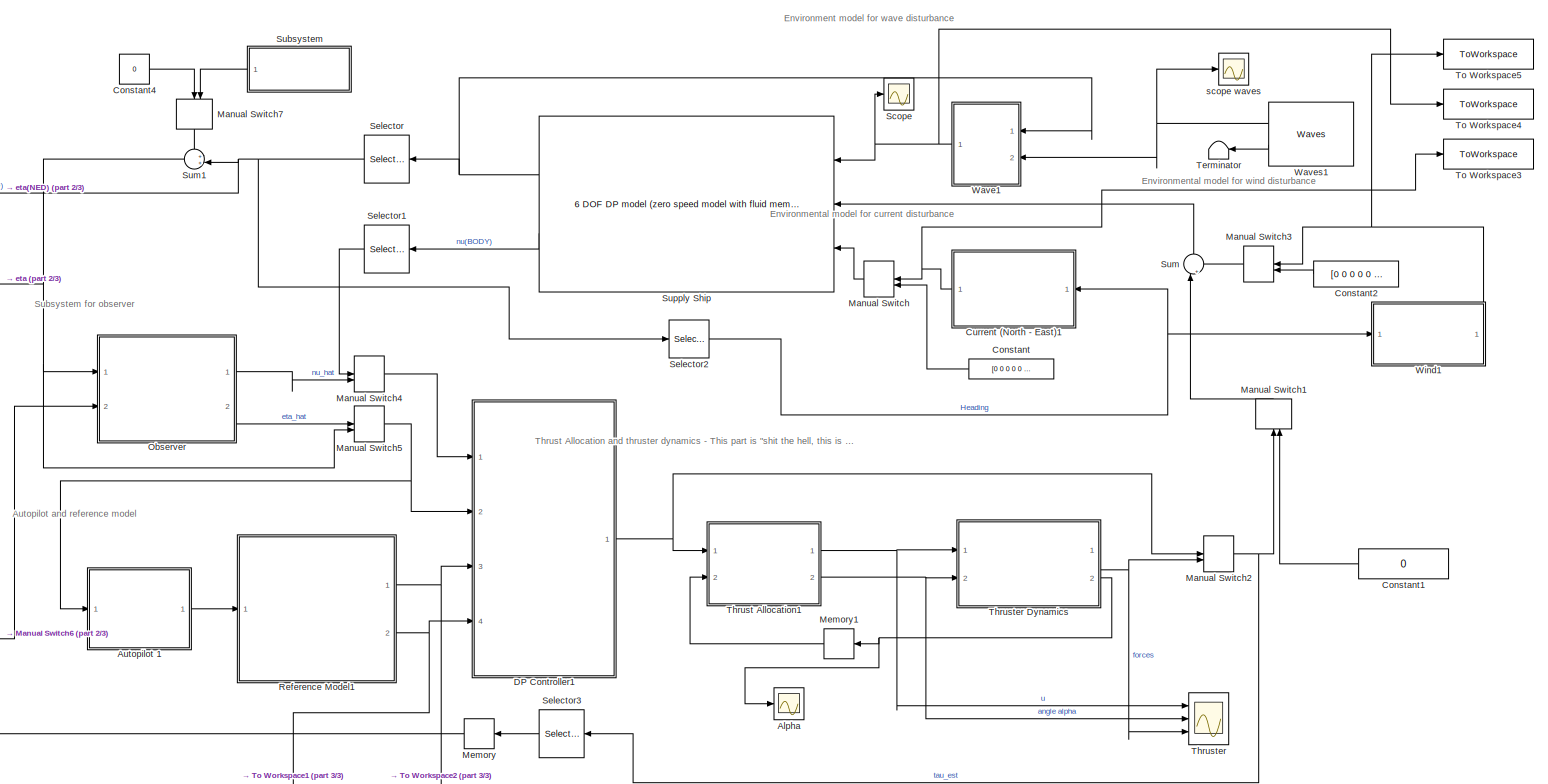
[diagram: root canvas - part 1/3, most of the canvas]
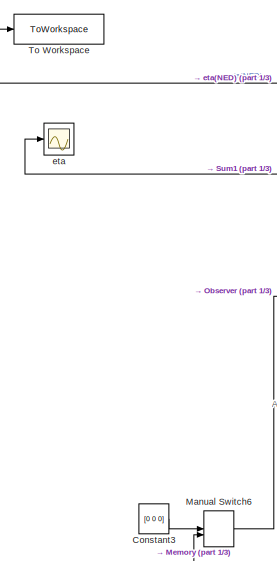
[diagram: root canvas - part 2/3, middle left region]
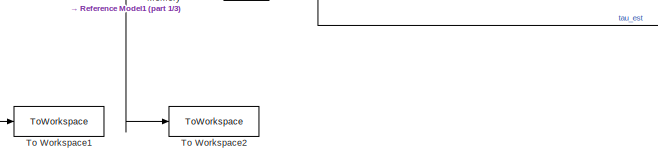
[diagram: root canvas - part 3/3, bottom center region]
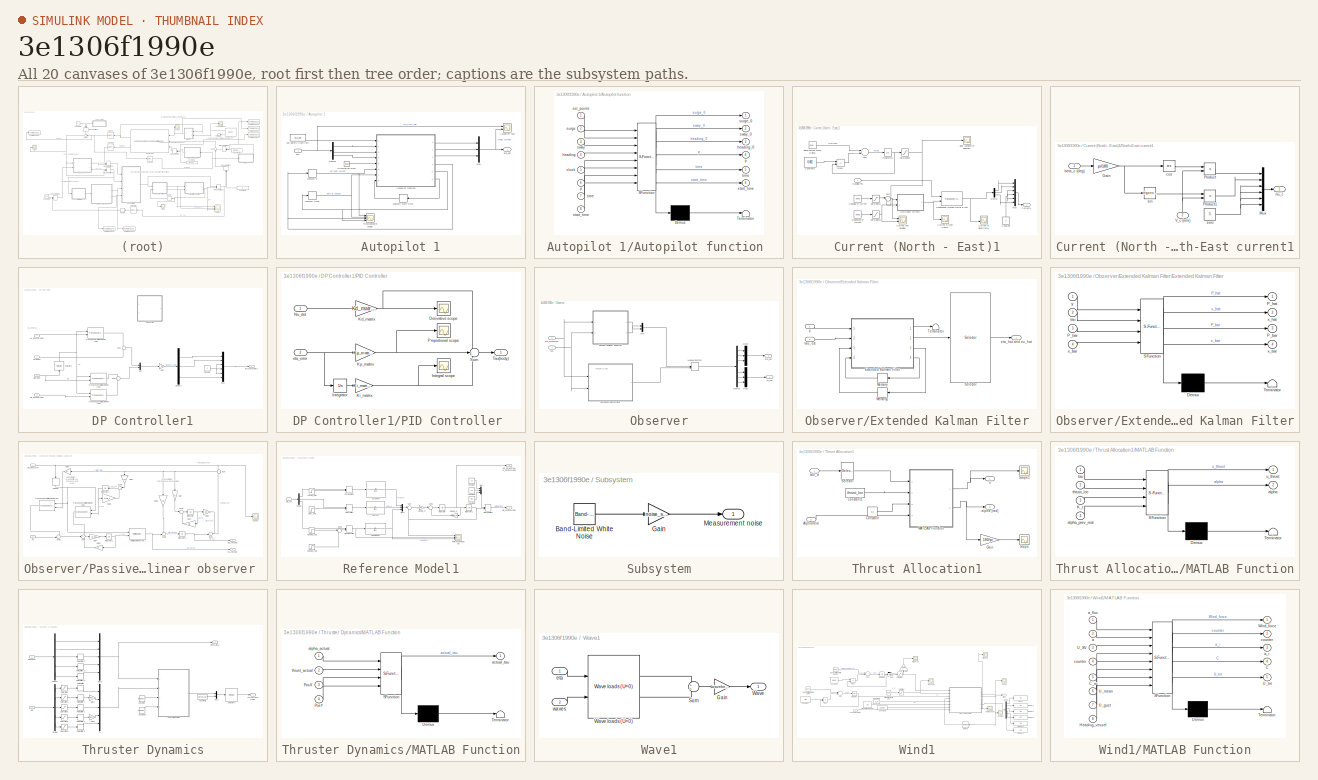
[diagram: thumbnail index - all 20 canvases of the model, root first then tree order]
MODEL slx_3e1306f1990e
KIND model
CONFIG AbsTol = auto
CONFIG EnableMultiTasking = off
CONFIG FixedStep = 0.1
CONFIG MaxStep = auto
CONFIG MinStep = auto
CONFIG RelTol = 1e-3
CONFIG SampleTimeConstraint = Unconstrained
CONFIG Solver = FixedStepAuto
CONFIG SolverName = FixedStepAuto
CONFIG StartTime = 0.0
CONFIG StopTime = 300
BLOCK [Scope] Alpha
  Floating = off
  NumInputPorts = 1
  Ports = [1]
  ScopeSpecificationString = Simulink.scopes.TimeScopeBlockCfg('CurrentConfiguration', extmgr.ConfigurationSet(extmgr.Configuration('Core','General UI',true),extmgr.Configuration('Core','Source UI',true),extmgr.Configuration('Sources','WiredSimulink',true,'DataLoggingVariableName','ScopeData1'),extmgr.Configuration('Visuals','Time Domain',true,'SerializedDisplays',{struct('MinYLimReal','-3.34477','MaxYLimReal','3.85387','YLab...<+1386ch>
BLOCK [SubSystem] Autopilot 1
  Ports = [1, 1]
  RequestExecContextInheritance = off
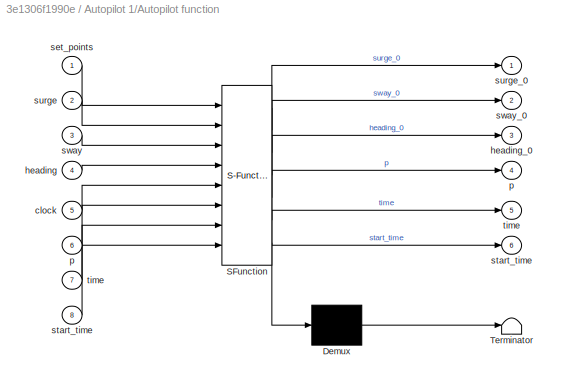
BLOCK [SubSystem] Autopilot 1/Autopilot function 
  ErrorFcn = Stateflow.Translate.translate
  PermitHierarchicalResolution = ExplicitOnly
  Ports = [8, 6]
  RequestExecContextInheritance = off
  SFBlockType = MATLAB Function
  TreatAsAtomicUnit = on
BLOCK [Demux] Autopilot 1/Autopilot function / Demux 
  Outputs = 1
  Ports = [1, 1]
BLOCK [S-Function] Autopilot 1/Autopilot function / SFunction 
  EnableBusSupport = on
  FunctionName = sf_sfun
  PortCounts = [8 7]
  Ports = [8, 7]
  SFcnIsStateOwnerBlock = off
  SFunctionDeploymentMode = off
  Tag = Stateflow S-Function 5
BLOCK [Terminator] Autopilot 1/Autopilot function / Terminator 
BLOCK [Inport] Autopilot 1/Autopilot function /clock
  IconDisplay = Port number
  Port = 5
BLOCK [Inport] Autopilot 1/Autopilot function /heading
  IconDisplay = Port number
  Port = 4
BLOCK [Outport] Autopilot 1/Autopilot function /heading_0
  IconDisplay = Port number
  Port = 3
BLOCK [Outport] Autopilot 1/Autopilot function /p
  IconDisplay = Port number
  Port = 4
BLOCK [Inport] Autopilot 1/Autopilot function /p 
  IconDisplay = Port number
  Port = 6
BLOCK [Inport] Autopilot 1/Autopilot function /set_points
  IconDisplay = Port number
BLOCK [Outport] Autopilot 1/Autopilot function /start_time
  IconDisplay = Port number
  Port = 6
BLOCK [Inport] Autopilot 1/Autopilot function /start_time 
  IconDisplay = Port number
  Port = 8
BLOCK [Inport] Autopilot 1/Autopilot function /surge
  IconDisplay = Port number
  Port = 2
BLOCK [Outport] Autopilot 1/Autopilot function /surge_0
  IconDisplay = Port number
BLOCK [Inport] Autopilot 1/Autopilot function /sway
  IconDisplay = Port number
  Port = 3
BLOCK [Outport] Autopilot 1/Autopilot function /sway_0
  IconDisplay = Port number
  Port = 2
BLOCK [Outport] Autopilot 1/Autopilot function /time
  IconDisplay = Port number
  Port = 5
BLOCK [Inport] Autopilot 1/Autopilot function /time 
  IconDisplay = Port number
  Port = 7
BLOCK [Scope] Autopilot 1/Autopilot test 
  Floating = off
  NumInputPorts = 2
  Ports = [2]
  ScopeSpecificationString = Simulink.scopes.TimeScopeBlockCfg('CurrentConfiguration', extmgr.ConfigurationSet(extmgr.Configuration('Core','General UI',true),extmgr.Configuration('Core','Source UI',true),extmgr.Configuration('Sources','WiredSimulink',true,'DataLoggingVariableName','ScopeData1'),extmgr.Configuration('Visuals','Time Domain',true,'SerializedDisplays',{struct('MinYLimReal','-71.22695','MaxYLimReal','66.49972','YL...<+1553ch>
BLOCK [Demux] Autopilot 1/Demux
  DisplayOption = bar
  Outputs = 3
  Ports = [1, 3]
BLOCK [Memory] Autopilot 1/Memory p
  InheritSampleTime = on
  InitialCondition = p
BLOCK [Memory] Autopilot 1/Memory start time
  InheritSampleTime = on
  InitialCondition = start_time
BLOCK [Memory] Autopilot 1/Memory time
  InitialCondition = time
BLOCK [Mux] Autopilot 1/Mux
  DisplayOption = bar
  Inputs = 3
  Ports = [3, 1]
BLOCK [Clock] Autopilot 1/Simulation Time
BLOCK [Scope] Autopilot 1/TIme//setpoint scope
  Floating = off
  NumInputPorts = 4
  Ports = [4]
  ScopeSpecificationString = Simulink.scopes.TimeScopeBlockCfg('CurrentConfiguration', extmgr.ConfigurationSet(extmgr.Configuration('Core','General UI',true),extmgr.Configuration('Core','Source UI',true),extmgr.Configuration('Sources','WiredSimulink',true,'DataLoggingVariableName','ScopeData1'),extmgr.Configuration('Visuals','Time Domain',true),extmgr.Configuration('Tools','Plot Navigation',true),extmgr.Configuration('Tools',...<+40ch>
BLOCK [Inport] Autopilot 1/eta
  IconDisplay = Port number
BLOCK [Outport] Autopilot 1/eta_set
  IconDisplay = Port number
BLOCK [Constant] Autopilot 1/set points (from init)
  Value = eta_set
BLOCK [Constant] Constant
  Value = [0 0 0 0 0 0]
BLOCK [Constant] Constant1
  Value = 0
BLOCK [Constant] Constant2
  Value = [0 0 0 0 0 0]
BLOCK [Constant] Constant3
  Value = [0 0 0]
BLOCK [Constant] Constant4
  Value = 0
BLOCK [SubSystem] Current (North - East)1
  Ports = [1, 1]
  RequestExecContextInheritance = off
BLOCK [Sum] Current (North - East)1/Add1
  InputSameDT = off
  Inputs = +-
  OutDataTypeStr = Inherit: Inherit via internal rule
  Ports = [2, 1]
  SaturateOnIntegerOverflow = off
BLOCK [Reference] Current (North - East)1/Band-Limited White Noise1  REF=simulink/Sources/Band-Limited
White Noise
  Ports = [0, 1]
  SourceBlock = simulink/Sources/Band-Limited\nWhite Noise
  SourceProductBaseCode = SL
  SourceProductName = Simulink
  SourceType = Band-Limited White Noise.
BLOCK [Constant] Current (North - East)1/Constant
  Value = 0
BLOCK [Constant] Current (North - East)1/Constant1
  Value = 0.001
BLOCK [Scope] Current (North - East)1/Current and heading
  Floating = off
  NumInputPorts = 2
  Ports = [2]
  ScopeSpecificationString = Simulink.scopes.TimeScopeBlockCfg('CurrentConfiguration', extmgr.ConfigurationSet(extmgr.Configuration('Core','General UI',true),extmgr.Configuration('Core','Source UI',true),extmgr.Configuration('Sources','WiredSimulink',true,'DataLoggingVariableName','ScopeData3'),extmgr.Configuration('Visuals','Time Domain',true,'SerializedDisplays',{struct('MinYLimReal','-44.4375','MaxYLimReal','404.9375','YLa...<+1459ch>
BLOCK [Scope] Current (North - East)1/Current in Bodyframe 
  Floating = off
  NumInputPorts = 2
  Ports = [2]
  ScopeSpecificationString = Simulink.scopes.TimeScopeBlockCfg('CurrentConfiguration', extmgr.ConfigurationSet(extmgr.Configuration('Core','General UI',true),extmgr.Configuration('Core','Source UI',true),extmgr.Configuration('Sources','WiredSimulink',true,'DataLoggingVariableName','ScopeData1'),extmgr.Configuration('Visuals','Time Domain',true,'SerializedDisplays',{struct('MinYLimReal','-0.00008','MaxYLimReal','0.00005','YLab...<+1777ch>
BLOCK [Scope] Current (North - East)1/Current in NED frame 
  Floating = off
  NumInputPorts = 1
  Ports = [1]
  ScopeSpecificationString = Simulink.scopes.TimeScopeBlockCfg('CurrentConfiguration', extmgr.ConfigurationSet(extmgr.Configuration('Core','General UI',true),extmgr.Configuration('Core','Source UI',true),extmgr.Configuration('Sources','WiredSimulink',true,'DataLoggingVariableName','ScopeData2'),extmgr.Configuration('Visuals','Time Domain',true,'SerializedDisplays',{struct('MinYLimReal','-0.03009','MaxYLimReal','0.01412','YLab...<+1547ch>
BLOCK [Outport] Current (North - East)1/Current1
  IconDisplay = Port number
  VectorParamsAs1DForOutWhenUnconnected = off
BLOCK [Demux] Current (North - East)1/Demux
  DisplayOption = bar
  Outputs = 3
  Ports = [1, 3]
BLOCK [Inport] Current (North - East)1/Heading PSI 
  IconDisplay = Port number
BLOCK [Reference] Current (North - East)1/Heading of current   REF=simulink/Sources/Ramp
  Ports = [0, 1]
  SourceBlock = simulink/Sources/Ramp
  SourceProductBaseCode = SL
  SourceProductName = Simulink
  SourceType = Ramp
BLOCK [Integrator] Current (North - East)1/Integrator1
  Ports = [1, 1]
BLOCK [Reference] Current (North - East)1/Magnitude of current   REF=simulink/Sources/Ramp
  Ports = [0, 1]
  SourceBlock = simulink/Sources/Ramp
  SourceProductBaseCode = SL
  SourceProductName = Simulink
  SourceType = Ramp
BLOCK [Mux] Current (North - East)1/Mux
  DisplayOption = bar
  Inputs = 6
  Ports = [6, 1]
BLOCK [SubSystem] Current (North - East)1/North-East current1
  AncestorBlock = marine_gnc/Environment/Current/North-East current
  Ports = [2, 1]
  RequestExecContextInheritance = off
BLOCK [Gain] Current (North - East)1/North-East current1/Gain
  Gain = pi/180
  OutDataTypeStr = Inherit: Inherit via internal rule
  ParamDataTypeStr = Inherit: Inherit via internal rule
  SaturateOnIntegerOverflow = off
BLOCK [Mux] Current (North - East)1/North-East current1/Mux
  DisplayOption = bar
  Inputs = 6
  Ports = [6, 1]
BLOCK [Product] Current (North - East)1/North-East current1/Product
  InputSameDT = off
  OutDataTypeStr = Inherit: Inherit via internal rule
  Ports = [2, 1]
  SaturateOnIntegerOverflow = off
BLOCK [Product] Current (North - East)1/North-East current1/Product1
  InputSameDT = off
  OutDataTypeStr = Inherit: Inherit via internal rule
  Ports = [2, 1]
  SaturateOnIntegerOverflow = off
BLOCK [Inport] Current (North - East)1/North-East current1/V_c (m//s)
  IconDisplay = Port number
  Port = 2
BLOCK [Inport] Current (North - East)1/North-East current1/beta_c (deg)
  IconDisplay = Port number
BLOCK [Trigonometry] Current (North - East)1/North-East current1/cos
  Operator = cos
  Ports = [1, 1]
BLOCK [Outport] Current (North - East)1/North-East current1/nu_c
  IconDisplay = Port number
BLOCK [Trigonometry] Current (North - East)1/North-East current1/sin
  Ports = [1, 1]
BLOCK [Constant] Current (North - East)1/North-East current1/zero
  Value = 0
BLOCK [Saturate] Current (North - East)1/Saturation1
  InputPortMap = u0
  LowerLimit = 180
  Ports = [1, 1]
  UpperLimit = 270
BLOCK [Saturate] Current (North - East)1/Saturation2
  InputPortMap = u0
  LowerLimit = 0
  Ports = [1, 1]
BLOCK [Saturate] Current (North - East)1/Saturation3
  InputPortMap = u0
  LowerLimit = -5
  Ports = [1, 1]
  UpperLimit = 5
BLOCK [Scope] Current (North - East)1/Slow variation of direction
  Floating = off
  NumInputPorts = 1
  Ports = [1]
  ScopeSpecificationString = Simulink.scopes.TimeScopeBlockCfg('CurrentConfiguration', extmgr.ConfigurationSet(extmgr.Configuration('Core','General UI',true),extmgr.Configuration('Core','Source UI',true),extmgr.Configuration('Sources','WiredSimulink',true,'DataLoggingVariableName','ScopeData1'),extmgr.Configuration('Visuals','Time Domain',true,'SerializedDisplays',{struct('MinYLimReal','-4.21815','MaxYLimReal','2.98991','YLab...<+1400ch>
BLOCK [Sum] Current (North - East)1/Sum
  IconShape = round
  InputSameDT = off
  Inputs = |++
  OutDataTypeStr = Inherit: Inherit via internal rule
  Ports = [2, 1]
  SaturateOnIntegerOverflow = off
BLOCK [Reference] Current (North - East)1/Transposed rotation matrix in yaw  REF=marine_gnc/Models/ Kinematics/Transposed rotation  (lib defined in mdl_10d96c221ba8, mdl_45f1105420c6)
 matrix in yaw
  Ports = [2, 1]
  SourceBlock = marine_gnc/Models/ Kinematics/Transposed rotation\n matrix in yaw
  SourceProductName = MSS GNC
BLOCK [Product] Current (North - East)1/prod1
  InputSameDT = off
  Inputs = **
  OutDataTypeStr = Inherit: Inherit via internal rule
  Ports = [2, 1]
  RndMeth = Floor
  SaturateOnIntegerOverflow = off
BLOCK [SubSystem] DP Controller1
  Ports = [4, 1]
  RequestExecContextInheritance = off
BLOCK [Constant] DP Controller1/Constant
  Value = 0
BLOCK [Demux] DP Controller1/Demux2
  DisplayOption = bar
  Outputs = 3
  Ports = [1, 3]
BLOCK [Inport] DP Controller1/Eta(NED) 
  IconDisplay = Port number
  Port = 2
BLOCK [Inport] DP Controller1/Eta_desired(NED) 
  IconDisplay = Port number
  Port = 3
BLOCK [Gain] DP Controller1/Gain
  Gain = k_lqg
  Multiplication = Matrix(K*u)
  OutDataTypeStr = Inherit: Inherit via internal rule
  ParamDataTypeStr = Inherit: Inherit via internal rule
  SaturateOnIntegerOverflow = off
BLOCK [Mux] DP Controller1/Mux
  DisplayOption = bar
  Inputs = 2
  Ports = [2, 1]
BLOCK [Mux] DP Controller1/Mux1
  DisplayOption = bar
  Inputs = 6
  Ports = [6, 1]
BLOCK [Inport] DP Controller1/Nu(BODY) 
  IconDisplay = Port number
BLOCK [Inport] DP Controller1/Nu_desired(NED)
  IconDisplay = Port number
  Port = 4
BLOCK [SubSystem] DP Controller1/PID Controller 
  Commented = on
  Ports = [2, 1]
  RequestExecContextInheritance = off
BLOCK [Scope] DP Controller1/PID Controller /Derivative scope 
  Floating = off
  NumInputPorts = 1
  Ports = [1]
  ScopeSpecificationString = Simulink.scopes.TimeScopeBlockCfg('CurrentConfiguration', extmgr.ConfigurationSet(extmgr.Configuration('Core','General UI',true),extmgr.Configuration('Core','Source UI',true),extmgr.Configuration('Sources','WiredSimulink',true,'DataLoggingVariableName','CtrlD_part','DataLogging',true),extmgr.Configuration('Visuals','Time Domain',true,'SerializedDisplays',{struct('MinYLimReal','-2565.39675','MaxYLi...<+1472ch>
BLOCK [Scope] DP Controller1/PID Controller /Integral scope 
  Floating = off
  NumInputPorts = 1
  Ports = [1]
  ScopeSpecificationString = Simulink.scopes.TimeScopeBlockCfg('CurrentConfiguration', extmgr.ConfigurationSet(extmgr.Configuration('Core','General UI',true),extmgr.Configuration('Core','Source UI',true),extmgr.Configuration('Sources','WiredSimulink',true,'DataLoggingSaveFormat','Array','DataLoggingLimitDataPoints',true,'DataLoggingDecimation','1','DataLoggingVariableName','CtrlI_part','DataLogging',true),extmgr.Configuration...<+1724ch>
BLOCK [Integrator] DP Controller1/PID Controller /Integrator
  Ports = [1, 1]
BLOCK [Gain] DP Controller1/PID Controller /Kd_matrix 
  Gain = Kd_matrix
  Multiplication = Matrix(K*u)
  OutDataTypeStr = Inherit: Inherit via internal rule
  ParamDataTypeStr = Inherit: Inherit via internal rule
  SaturateOnIntegerOverflow = off
BLOCK [Gain] DP Controller1/PID Controller /Ki_matrix 
  Gain = Ki_matrix
  Multiplication = Matrix(K*u)
  OutDataTypeStr = Inherit: Inherit via internal rule
  ParamDataTypeStr = Inherit: Inherit via internal rule
  SaturateOnIntegerOverflow = off
BLOCK [Gain] DP Controller1/PID Controller /Kp_matrix
  Gain = Kp_matrix
  Multiplication = Matrix(K*u)
  OutDataTypeStr = Inherit: Inherit via internal rule
  ParamDataTypeStr = Inherit: Inherit via internal rule
  SaturateOnIntegerOverflow = off
BLOCK [Inport] DP Controller1/PID Controller /Nu_dot 
  IconDisplay = Port number
BLOCK [Scope] DP Controller1/PID Controller /Proportional scope 
  Floating = off
  NumInputPorts = 1
  Ports = [1]
  ScopeSpecificationString = Simulink.scopes.TimeScopeBlockCfg('CurrentConfiguration', extmgr.ConfigurationSet(extmgr.Configuration('Core','General UI',true),extmgr.Configuration('Core','Source UI',true),extmgr.Configuration('Sources','WiredSimulink',true,'DataLoggingSaveFormat','Array','DataLoggingLimitDataPoints',true,'DataLoggingDecimation','1','DataLoggingVariableName','CtlP_part','DataLogging',true),extmgr.Configuration(...<+1716ch>
BLOCK [Sum] DP Controller1/PID Controller /Sum
  IconShape = round
  InputSameDT = off
  Inputs = -++
  OutDataTypeStr = Inherit: Inherit via internal rule
  Ports = [3, 1]
  SaturateOnIntegerOverflow = off
BLOCK [Outport] DP Controller1/PID Controller /Tau(body)
  IconDisplay = Port number
  VectorParamsAs1DForOutWhenUnconnected = off
BLOCK [Inport] DP Controller1/PID Controller /eta_error 
  IconDisplay = Port number
  Port = 2
BLOCK [Selector] DP Controller1/Selector1
  IndexOptions = Starting index (dialog)
  Indices = [3]
  InputPortWidth = 3
  OutputSizes = 1
  Ports = [1, 1]
BLOCK [Sum] DP Controller1/Sum
  IconShape = round
  InputSameDT = off
  Inputs = +-
  OutDataTypeStr = Inherit: Inherit via internal rule
  Ports = [2, 1]
  SaturateOnIntegerOverflow = off
BLOCK [Sum] DP Controller1/Sum1
  IconShape = round
  InputSameDT = off
  Inputs = -+
  OutDataTypeStr = Inherit: Inherit via internal rule
  Ports = [2, 1]
  SaturateOnIntegerOverflow = off
BLOCK [Reference] DP Controller1/Transposed rotation matrix in yaw1  REF=marine_gnc/Models/ Kinematics/Transposed rotation  (lib defined in mdl_10d96c221ba8, mdl_45f1105420c6)
 matrix in yaw
  Ports = [2, 1]
  SourceBlock = marine_gnc/Models/ Kinematics/Transposed rotation\n matrix in yaw
  SourceProductName = MSS GNC
BLOCK [Reference] DP Controller1/Transposed rotation matrix in yaw2  REF=marine_gnc/Models/ Kinematics/Transposed rotation  (lib defined in mdl_10d96c221ba8, mdl_45f1105420c6)
 matrix in yaw
  Ports = [2, 1]
  SourceBlock = marine_gnc/Models/ Kinematics/Transposed rotation\n matrix in yaw
  SourceProductName = MSS GNC
BLOCK [Reference] DP Controller1/Transposed rotation matrix in yaw3  REF=marine_gnc/Models/ Kinematics/Transposed rotation  (lib defined in mdl_10d96c221ba8, mdl_45f1105420c6)
 matrix in yaw
  Ports = [2, 1]
  SourceBlock = marine_gnc/Models/ Kinematics/Transposed rotation\n matrix in yaw
  SourceProductName = MSS GNC
BLOCK [Outport] DP Controller1/tau (body frame)1
  IconDisplay = Port number
  VectorParamsAs1DForOutWhenUnconnected = off
BLOCK [ManualSwitch] Manual Switch
BLOCK [ManualSwitch] Manual Switch1
  CurrentSetting = 0
BLOCK [ManualSwitch] Manual Switch2
  CurrentSetting = 0
BLOCK [ManualSwitch] Manual Switch3
BLOCK [ManualSwitch] Manual Switch4
BLOCK [ManualSwitch] Manual Switch5
  CurrentSetting = 0
BLOCK [ManualSwitch] Manual Switch6
  CurrentSetting = 0
BLOCK [ManualSwitch] Manual Switch7
BLOCK [Memory] Memory
  InheritSampleTime = on
BLOCK [Memory] Memory1
  InitialCondition = [0 0 0 0 0]
BLOCK [SubSystem] Observer
  Ports = [2, 2]
  RequestExecContextInheritance = off
BLOCK [Demux] Observer/Demux
  DisplayOption = bar
  Outputs = 6
  Ports = [1, 6]
BLOCK [SubSystem] Observer/Extended Kalman Filter
  Ports = [2, 1]
  RequestExecContextInheritance = off
BLOCK [SubSystem] Observer/Extended Kalman Filter/Extended Kalman Filter
  ErrorFcn = Stateflow.Translate.translate
  PermitHierarchicalResolution = ExplicitOnly
  Ports = [4, 4]
  RequestExecContextInheritance = off
  SFBlockType = MATLAB Function
  SystemSampleTime = h
  TreatAsAtomicUnit = on
BLOCK [Demux] Observer/Extended Kalman Filter/Extended Kalman Filter/ Demux 
  Outputs = 1
  Ports = [1, 1]
BLOCK [S-Function] Observer/Extended Kalman Filter/Extended Kalman Filter/ SFunction 
  EnableBusSupport = on
  FunctionName = sf_sfun
  Parameters = EKFData
  PortCounts = [4 5]
  Ports = [4, 5]
  SFcnIsStateOwnerBlock = off
  SFunctionDeploymentMode = off
  Tag = Stateflow S-Function 10
BLOCK [Terminator] Observer/Extended Kalman Filter/Extended Kalman Filter/ Terminator 
BLOCK [Outport] Observer/Extended Kalman Filter/Extended Kalman Filter/P_bar
  IconDisplay = Port number
  Port = 3
BLOCK [Inport] Observer/Extended Kalman Filter/Extended Kalman Filter/P_bar 
  IconDisplay = Port number
  Port = 3
BLOCK [Outport] Observer/Extended Kalman Filter/Extended Kalman Filter/P_hat
  IconDisplay = Port number
BLOCK [Inport] Observer/Extended Kalman Filter/Extended Kalman Filter/tau
  IconDisplay = Port number
  Port = 2
BLOCK [Outport] Observer/Extended Kalman Filter/Extended Kalman Filter/x_bar
  IconDisplay = Port number
  Port = 4
BLOCK [Inport] Observer/Extended Kalman Filter/Extended Kalman Filter/x_bar 
  IconDisplay = Port number
  Port = 4
BLOCK [Outport] Observer/Extended Kalman Filter/Extended Kalman Filter/x_hat
  IconDisplay = Port number
  Port = 2
BLOCK [Inport] Observer/Extended Kalman Filter/Extended Kalman Filter/y
  IconDisplay = Port number
BLOCK [Memory] Observer/Extended Kalman Filter/Memory
  InitialCondition = x0
BLOCK [Memory] Observer/Extended Kalman Filter/Memory1
  InitialCondition = P0
BLOCK [Selector] Observer/Extended Kalman Filter/Selector
  IndexOptions = Index vector (dialog)
  Indices = [7 8 9 13 14 15]
  InputPortWidth = 15
  OutputSizes = 1
  Ports = [1, 1]
BLOCK [Terminator] Observer/Extended Kalman Filter/Terminator
  Commented = on
BLOCK [Outport] Observer/Extended Kalman Filter/eta_hat and nu_hat
  IconDisplay = Port number
BLOCK [Inport] Observer/Extended Kalman Filter/tau_est
  IconDisplay = Port number
  Port = 2
BLOCK [Inport] Observer/Extended Kalman Filter/y
  IconDisplay = Port number
BLOCK [ManualSwitch] Observer/Manual Switch2
  CurrentSetting = 0
BLOCK [Mux] Observer/Mux
  DisplayOption = bar
  Inputs = 2
  Ports = [2, 1]
BLOCK [Mux] Observer/Mux2
  DisplayOption = bar
  Inputs = 3
  Ports = [3, 1]
BLOCK [Mux] Observer/Mux3
  DisplayOption = bar
  Inputs = 3
  Ports = [3, 1]
BLOCK [SubSystem] Observer/Passive nonlinear observer 
  Ports = [2, 2]
  RequestExecContextInheritance = off
BLOCK [Outport] Observer/Passive nonlinear observer /Eta_hat(NED) 
  IconDisplay = Port number
BLOCK [Gain] Observer/Passive nonlinear observer /Gain
  Gain = K1
  Multiplication = Matrix(K*u)
  OutDataTypeStr = Inherit: Inherit via internal rule
  ParamDataTypeStr = Inherit: Inherit via internal rule
  SaturateOnIntegerOverflow = off
BLOCK [Gain] Observer/Passive nonlinear observer /Gain1
  Gain = Aw
  Multiplication = Matrix(K*u)
  OutDataTypeStr = Inherit: Inherit via internal rule
  ParamDataTypeStr = Inherit: Inherit via internal rule
  SaturateOnIntegerOverflow = off
BLOCK [Gain] Observer/Passive nonlinear observer /Gain2
  Gain = Cw
  Multiplication = Matrix(K*u)
  OutDataTypeStr = Inherit: Inherit via internal rule
  ParamDataTypeStr = Inherit: Inherit via internal rule
  SaturateOnIntegerOverflow = off
BLOCK [Gain] Observer/Passive nonlinear observer /Gain3
  Gain = K4
  Multiplication = Matrix(K*u)
  OutDataTypeStr = Inherit: Inherit via internal rule
  ParamDataTypeStr = Inherit: Inherit via internal rule
  SaturateOnIntegerOverflow = off
BLOCK [Gain] Observer/Passive nonlinear observer /Gain4
  Gain = M_inv
  Multiplication = Matrix(K*u)
  OutDataTypeStr = Inherit: Inherit via internal rule
  ParamDataTypeStr = Inherit: Inherit via internal rule
  SaturateOnIntegerOverflow = off
BLOCK [Gain] Observer/Passive nonlinear observer /Gain5
  Gain = D
  Multiplication = Matrix(K*u)
  OutDataTypeStr = Inherit: Inherit via internal rule
  ParamDataTypeStr = Inherit: Inherit via internal rule
  SaturateOnIntegerOverflow = off
BLOCK [Gain] Observer/Passive nonlinear observer /Gain6
  Gain = K2
  Multiplication = Matrix(K*u)
  OutDataTypeStr = Inherit: Inherit via internal rule
  ParamDataTypeStr = Inherit: Inherit via internal rule
  SaturateOnIntegerOverflow = off
BLOCK [Gain] Observer/Passive nonlinear observer /Gain7
  Gain = K3
  Multiplication = Matrix(K*u)
  OutDataTypeStr = Inherit: Inherit via internal rule
  ParamDataTypeStr = Inherit: Inherit via internal rule
  SaturateOnIntegerOverflow = off
BLOCK [Gain] Observer/Passive nonlinear observer /Gain8
  Gain = 1/Tb_1
  Multiplication = Matrix(K*u)
  OutDataTypeStr = Inherit: Inherit via internal rule
  ParamDataTypeStr = Inherit: Inherit via internal rule
  SaturateOnIntegerOverflow = off
BLOCK [Integrator] Observer/Passive nonlinear observer /Integrator
  Ports = [1, 1]
BLOCK [Integrator] Observer/Passive nonlinear observer /Integrator1
  Ports = [1, 1]
BLOCK [Integrator] Observer/Passive nonlinear observer /Integrator2
  Ports = [1, 1]
BLOCK [Integrator] Observer/Passive nonlinear observer /Integrator3
  Ports = [1, 1]
BLOCK [Outport] Observer/Passive nonlinear observer /Nu_hat(NED) 
  IconDisplay = Port number
  Port = 2
BLOCK [Reference] Observer/Passive nonlinear observer /Rotation matrix in yaw 1  REF=marine_gnc/Models/ Kinematics/Rotation matrix  (lib defined in mdl_10d96c221ba8, mdl_45f1105420c6)
in yaw 
  Ports = [2, 1]
  SourceBlock = marine_gnc/Models/ Kinematics/Rotation matrix\nin yaw
  SourceProductName = MSS GNC
BLOCK [Scope] Observer/Passive nonlinear observer /Scope1
  Floating = off
  NumInputPorts = 1
  Ports = [1]
  ScopeSpecificationString = Simulink.scopes.TimeScopeBlockCfg('CurrentConfiguration', extmgr.ConfigurationSet(extmgr.Configuration('Core','General UI',true),extmgr.Configuration('Core','Source UI',true),extmgr.Configuration('Sources','WiredSimulink',true,'DataLoggingVariableName','ScopeData3'),extmgr.Configuration('Visuals','Time Domain',true,'SerializedDisplays',{struct('MinYLimReal','-1.00000','MaxYLimReal','1.00000','YLab...<+1436ch>
BLOCK [Selector] Observer/Passive nonlinear observer /Selector
  IndexOptions = Index vector (dialog)
  Indices = [3]
  InputPortWidth = 3
  OutputSizes = 1
  Ports = [1, 1]
BLOCK [Sum] Observer/Passive nonlinear observer /Sum
  IconShape = round
  InputSameDT = off
  Inputs = +-
  OutDataTypeStr = Inherit: Inherit via internal rule
  Ports = [2, 1]
  SaturateOnIntegerOverflow = off
BLOCK [Sum] Observer/Passive nonlinear observer /Sum1
  IconShape = round
  InputSameDT = off
  Inputs = ++|
  OutDataTypeStr = Inherit: Inherit via internal rule
  Ports = [2, 1]
  SaturateOnIntegerOverflow = off
BLOCK [Sum] Observer/Passive nonlinear observer /Sum2
  IconShape = round
  InputSameDT = off
  Inputs = |++
  OutDataTypeStr = Inherit: Inherit via internal rule
  Ports = [2, 1]
  SaturateOnIntegerOverflow = off
BLOCK [Sum] Observer/Passive nonlinear observer /Sum3
  IconShape = round
  InputSameDT = off
  Inputs = ++|
  OutDataTypeStr = Inherit: Inherit via internal rule
  Ports = [2, 1]
  SaturateOnIntegerOverflow = off
BLOCK [Sum] Observer/Passive nonlinear observer /Sum4
  IconShape = round
  InputSameDT = off
  Inputs = ++-
  OutDataTypeStr = Inherit: Inherit via internal rule
  Ports = [3, 1]
  SaturateOnIntegerOverflow = off
BLOCK [Sum] Observer/Passive nonlinear observer /Sum5
  IconShape = round
  InputSameDT = off
  Inputs = ++|
  OutDataTypeStr = Inherit: Inherit via internal rule
  Ports = [2, 1]
  SaturateOnIntegerOverflow = off
BLOCK [Sum] Observer/Passive nonlinear observer /Sum6
  IconShape = round
  InputSameDT = off
  Inputs = |+-
  OutDataTypeStr = Inherit: Inherit via internal rule
  Ports = [2, 1]
  SaturateOnIntegerOverflow = off
BLOCK [Reference] Observer/Passive nonlinear observer /Transposed rotation matrix in yaw  REF=marine_gnc/Models/ Kinematics/Transposed rotation  (lib defined in mdl_10d96c221ba8, mdl_45f1105420c6)
 matrix in yaw
  Ports = [2, 1]
  SourceBlock = marine_gnc/Models/ Kinematics/Transposed rotation\n matrix in yaw
  SourceProductName = MSS GNC
BLOCK [Reference] Observer/Passive nonlinear observer /Transposed rotation matrix in yaw1  REF=marine_gnc/Models/ Kinematics/Transposed rotation  (lib defined in mdl_10d96c221ba8, mdl_45f1105420c6)
 matrix in yaw
  Ports = [2, 1]
  SourceBlock = marine_gnc/Models/ Kinematics/Transposed rotation\n matrix in yaw
  SourceProductName = MSS GNC
BLOCK [Inport] Observer/Passive nonlinear observer /eta_measured
  IconDisplay = Port number
BLOCK [Inport] Observer/Passive nonlinear observer /tau 
  IconDisplay = Port number
  Port = 2
BLOCK [Outport] Observer/eta_hat
  IconDisplay = Port number
  Port = 2
BLOCK [Inport] Observer/eta_measured 
  IconDisplay = Port number
BLOCK [Outport] Observer/nu_hat
  IconDisplay = Port number
BLOCK [Inport] Observer/tau
  IconDisplay = Port number
  Port = 2
  PortDimensions = [3 1]
BLOCK [SubSystem] Reference Model1
  Ports = [1, 2]
  RequestExecContextInheritance = off
BLOCK [Constant] Reference Model1/Constant
  Value = 10
BLOCK [Constant] Reference Model1/Constant1
  Value = 10
BLOCK [Constant] Reference Model1/Constant2
  Value = -pi/2
BLOCK [Demux] Reference Model1/Demux
  DisplayOption = bar
  Outputs = 3
  Ports = [1, 3]
BLOCK [Outport] Reference Model1/Eta_desired(NED)
  IconDisplay = Port number
  VectorParamsAs1DForOutWhenUnconnected = off
BLOCK [Gain] Reference Model1/Gamma_m 
  Gain = gamma_m
  Multiplication = Matrix(K*u)
  OutDataTypeStr = Inherit: Inherit via internal rule
  ParamDataTypeStr = Inherit: Inherit via internal rule
  SaturateOnIntegerOverflow = off
BLOCK [TransferFcn] Reference Model1/Heading set
  Denominator = [t3 1]
BLOCK [ManualSwitch] Reference Model1/Heading switch 
BLOCK [Step] Reference Model1/Heading_set1
  After = -pi/4
  SampleTime = 0
  Time = 100
BLOCK [Step] Reference Model1/Heading_set2
  After = pi/4
  SampleTime = 0
  Time = 800
BLOCK [Integrator] Reference Model1/Integrator
  Ports = [1, 1]
BLOCK [Integrator] Reference Model1/Integrator1
  Ports = [1, 1]
BLOCK [ManualSwitch] Reference Model1/Manual Switch
  CurrentSetting = 0
BLOCK [Mux] Reference Model1/Mux
  DisplayOption = bar
  Inputs = 3
  Ports = [3, 1]
BLOCK [Mux] Reference Model1/Mux2
  DisplayOption = bar
  Inputs = 3
  Ports = [3, 1]
BLOCK [Gain] Reference Model1/Omega_m
  Gain = omega_m
  Multiplication = Matrix(K*u)
  OutDataTypeStr = Inherit: Inherit via internal rule
  ParamDataTypeStr = Inherit: Inherit via internal rule
  SaturateOnIntegerOverflow = off
BLOCK [Scope] Reference Model1/Reference model set 
  Floating = off
  NumInputPorts = 3
  Ports = [3]
  ScopeSpecificationString = Simulink.scopes.TimeScopeBlockCfg('CurrentConfiguration', extmgr.ConfigurationSet(extmgr.Configuration('Core','General UI',true),extmgr.Configuration('Core','Source UI',true),extmgr.Configuration('Sources','WiredSimulink',true,'DataLoggingVariableName','ScopeData2'),extmgr.Configuration('Visuals','Time Domain',true,'SerializedDisplays',{struct('MinYLimReal','-0.375','MaxYLimReal','3.375','YLabelRe...<+1451ch>
BLOCK [Sum] Reference Model1/Sum
  IconShape = round
  InputSameDT = off
  Inputs = |+-
  OutDataTypeStr = Inherit: Inherit via internal rule
  Ports = [2, 1]
  SaturateOnIntegerOverflow = off
BLOCK [Sum] Reference Model1/Sum1
  IconShape = round
  InputSameDT = off
  Inputs = |+-
  OutDataTypeStr = Inherit: Inherit via internal rule
  Ports = [2, 1]
  SaturateOnIntegerOverflow = off
BLOCK [Sum] Reference Model1/Sum2
  IconShape = round
  InputSameDT = off
  Inputs = |++
  OutDataTypeStr = Inherit: Inherit via internal rule
  Ports = [2, 1]
  SaturateOnIntegerOverflow = off
BLOCK [TransferFcn] Reference Model1/Surge set
  Denominator = [t1 1]
BLOCK [ManualSwitch] Reference Model1/Surge switch 
BLOCK [TransferFcn] Reference Model1/Sway set
  Denominator = [t2 1]
BLOCK [ManualSwitch] Reference Model1/Sway switch
BLOCK [Outport] Reference Model1/eta_dot_desired = nu_desired(NED)
  IconDisplay = Port number
  Port = 2
  VectorParamsAs1DForOutWhenUnconnected = off
BLOCK [Inport] Reference Model1/eta_set 
  IconDisplay = Port number
BLOCK [Step] Reference Model1/surge_set1 
  After = 50
  SampleTime = 0
  Time = 0
BLOCK [Step] Reference Model1/sway_set1
  After = 0
  SampleTime = 0
  Time = 100
BLOCK [Scope] Scope
  Floating = off
  NumInputPorts = 1
  Ports = [1]
  ScopeSpecificationString = Simulink.scopes.TimeScopeBlockCfg('CurrentConfiguration', extmgr.ConfigurationSet(extmgr.Configuration('Core','General UI',true),extmgr.Configuration('Core','Source UI',true),extmgr.Configuration('Sources','WiredSimulink',true,'DataLoggingVariableName','ScopeData1'),extmgr.Configuration('Visuals','Time Domain',true,'SerializedDisplays',{struct('MinYLimReal','-285056252.73678','MaxYLimReal','278706...<+1506ch>
BLOCK [Selector] Selector
  IndexOptions = Index vector (dialog)
  Indices = [1 2 6]
  InputPortWidth = 6
  OutputSizes = 1
  Ports = [1, 1]
BLOCK [Selector] Selector1
  IndexOptions = Index vector (dialog)
  Indices = [1 2 6]
  InputPortWidth = 6
  OutputSizes = 1
  Ports = [1, 1]
BLOCK [Selector] Selector2
  IndexOptions = Index vector (dialog)
  Indices = [3]
  InputPortWidth = 3
  OutputSizes = 1
  Ports = [1, 1]
BLOCK [Selector] Selector3
  IndexOptions = Index vector (dialog)
  Indices = [1 2 6]
  InputPortWidth = 6
  OutputSizes = 1
  Ports = [1, 1]
BLOCK [SubSystem] Subsystem
  Ports = [0, 1]
  RequestExecContextInheritance = off
BLOCK [Reference] Subsystem/Band-Limited White Noise  REF=simulink/Sources/Band-Limited
White Noise
  Ports = [0, 1]
  SourceBlock = simulink/Sources/Band-Limited\nWhite Noise
  SourceProductBaseCode = SL
  SourceProductName = Simulink
  SourceType = Band-Limited White Noise.
BLOCK [Gain] Subsystem/Gain
  Gain = noise_scalar
  OutDataTypeStr = Inherit: Inherit via internal rule
  ParamDataTypeStr = Inherit: Inherit via internal rule
  SaturateOnIntegerOverflow = off
BLOCK [Outport] Subsystem/Measurement noise
  IconDisplay = Port number
BLOCK [Sum] Sum
  IconShape = round
  InputSameDT = off
  Inputs = |++
  OutDataTypeStr = Inherit: Inherit via internal rule
  Ports = [2, 1]
  SaturateOnIntegerOverflow = off
BLOCK [Sum] Sum1
  IconShape = round
  InputSameDT = off
  Inputs = ++|
  OutDataTypeStr = Inherit: Inherit via internal rule
  Ports = [2, 1]
  SaturateOnIntegerOverflow = off
BLOCK [Reference] Supply Ship  REF=marine_hydro/Hydro Library/6 DOF DP model
 (zero speed model with fluid memory)
  Ports = [3, 2]
  SourceBlock = marine_hydro/Hydro Library/6 DOF DP model\n (zero speed model with fluid memory)
  SourceProductName = MSS Hydro
  SourceType = 6 DOF zero speed model
BLOCK [Terminator] Terminator
BLOCK [SubSystem] Thrust Allocation1
  Ports = [2, 2]
  RequestExecContextInheritance = off
BLOCK [Inport] Thrust Allocation1/AlphaReal
  IconDisplay = Port number
  Port = 2
BLOCK [Constant] Thrust Allocation1/Constant
  Value = K_t
BLOCK [Constant] Thrust Allocation1/Constant1
  Value = thrust_loc
BLOCK [Gain] Thrust Allocation1/Gain
  Gain = 180/pi
  OutDataTypeStr = Inherit: Inherit via internal rule
  ParamDataTypeStr = Inherit: Inherit via internal rule
  SaturateOnIntegerOverflow = off
BLOCK [SubSystem] Thrust Allocation1/MATLAB Function
  ErrorFcn = Stateflow.Translate.translate
  PermitHierarchicalResolution = ExplicitOnly
  Ports = [4, 2]
  RequestExecContextInheritance = off
  SFBlockType = MATLAB Function
  TreatAsAtomicUnit = on
BLOCK [Demux] Thrust Allocation1/MATLAB Function/ Demux 
  Outputs = 1
  Ports = [1, 1]
BLOCK [S-Function] Thrust Allocation1/MATLAB Function/ SFunction 
  EnableBusSupport = on
  FunctionName = sf_sfun
  PortCounts = [4 3]
  Ports = [4, 3]
  SFcnIsStateOwnerBlock = off
  SFunctionDeploymentMode = off
  Tag = Stateflow S-Function 2
BLOCK [Terminator] Thrust Allocation1/MATLAB Function/ Terminator 
BLOCK [Inport] Thrust Allocation1/MATLAB Function/K_t
  IconDisplay = Port number
  Port = 3
BLOCK [Outport] Thrust Allocation1/MATLAB Function/alpha
  IconDisplay = Port number
  Port = 2
BLOCK [Inport] Thrust Allocation1/MATLAB Function/alpha_prev_real
  IconDisplay = Port number
  Port = 4
BLOCK [Inport] Thrust Allocation1/MATLAB Function/tau
  IconDisplay = Port number
BLOCK [Inport] Thrust Allocation1/MATLAB Function/thrust_loc
  IconDisplay = Port number
  Port = 2
BLOCK [Outport] Thrust Allocation1/MATLAB Function/u_thrust
  IconDisplay = Port number
BLOCK [Scope] Thrust Allocation1/Scope
  Floating = off
  NumInputPorts = 1
  Ports = [1]
  ScopeSpecificationString = Simulink.scopes.TimeScopeBlockCfg('CurrentConfiguration', extmgr.ConfigurationSet(extmgr.Configuration('Core','General UI',true),extmgr.Configuration('Core','Source UI',true),extmgr.Configuration('Sources','WiredSimulink',true,'DataLoggingVariableName','ScopeData1'),extmgr.Configuration('Visuals','Time Domain',true,'SerializedDisplays',{struct('MinYLimReal','-221.82918','MaxYLimReal','220.18555','...<+1582ch>
BLOCK [Scope] Thrust Allocation1/Scope1
  Floating = off
  NumInputPorts = 1
  Ports = [1]
  ScopeSpecificationString = Simulink.scopes.TimeScopeBlockCfg('CurrentConfiguration', extmgr.ConfigurationSet(extmgr.Configuration('Core','General UI',true),extmgr.Configuration('Core','Source UI',true),extmgr.Configuration('Sources','WiredSimulink',true,'DataLoggingVariableName','ScopeData2'),extmgr.Configuration('Visuals','Time Domain',true,'SerializedDisplays',{struct('MinYLimReal','-14223602.8819','MaxYLimReal','23180621...<+1737ch>
BLOCK [Selector] Thrust Allocation1/Selector
  IndexOptions = Index vector (dialog)
  Indices = [1 2 6]
  InputPortWidth = 6
  OutputSizes = 1
  Ports = [1, 1]
BLOCK [Outport] Thrust Allocation1/alpha [rad]
  IconDisplay = Port number
  Port = 2
  VectorParamsAs1DForOutWhenUnconnected = off
BLOCK [Inport] Thrust Allocation1/tau_d
  IconDisplay = Port number
BLOCK [Outport] Thrust Allocation1/u
  IconDisplay = Port number
  VectorParamsAs1DForOutWhenUnconnected = off
BLOCK [Scope] Thruster
  Commented = on
  Floating = off
  NumInputPorts = 3
  Ports = [3]
  ScopeSpecificationString = Simulink.scopes.TimeScopeBlockCfg('CurrentConfiguration', extmgr.ConfigurationSet(extmgr.Configuration('Core','General UI',true),extmgr.Configuration('Core','Source UI',true),extmgr.Configuration('Sources','WiredSimulink',true,'DataLoggingVariableName','ScopeData1'),extmgr.Configuration('Visuals','Time Domain',true,'SerializedDisplays',{struct('MinYLimReal','-71488261.99613','MaxYLimReal','3283613...<+2780ch>
BLOCK [SubSystem] Thruster Dynamics
  Ports = [2, 2]
  RequestExecContextInheritance = off
BLOCK [Constant] Thruster Dynamics/Constant
  Value = [thrusters(1).xposition, thrusters(2).xposition, thrusters(3).xposition, thrusters(4).xposition, thrusters(5).xposition]
BLOCK [Constant] Thruster Dynamics/Constant1
  Value = zeros(3,1)
BLOCK [Constant] Thruster Dynamics/Constant2
  Value = [thrusters(1).yposition, thrusters(2).yposition, thrusters(3).yposition, thrusters(4).yposition, thrusters(5).yposition]
BLOCK [Demux] Thruster Dynamics/Demux
  DisplayOption = bar
  Outputs = 5
  Ports = [1, 5]
BLOCK [Demux] Thruster Dynamics/Demux1
  DisplayOption = bar
  Outputs = 5
  Ports = [1, 5]
BLOCK [Outport] Thruster Dynamics/Forces (body frame) 
  IconDisplay = Port number
  VectorParamsAs1DForOutWhenUnconnected = off
BLOCK [Gain] Thruster Dynamics/Gain1
  Gain = 1-thrusterfault
  OutDataTypeStr = Inherit: Inherit via internal rule
  ParamDataTypeStr = Inherit: Inherit via internal rule
  SaturateOnIntegerOverflow = off
BLOCK [Gain] Thruster Dynamics/Gain2
  Gain = 1-thrusterfault
  OutDataTypeStr = Inherit: Inherit via internal rule
  ParamDataTypeStr = Inherit: Inherit via internal rule
  SaturateOnIntegerOverflow = off
BLOCK [SubSystem] Thruster Dynamics/MATLAB Function
  ErrorFcn = Stateflow.Translate.translate
  PermitHierarchicalResolution = ExplicitOnly
  Ports = [4, 1]
  RequestExecContextInheritance = off
  SFBlockType = MATLAB Function
  TreatAsAtomicUnit = on
BLOCK [Demux] Thruster Dynamics/MATLAB Function/ Demux 
  Outputs = 1
  Ports = [1, 1]
BLOCK [S-Function] Thruster Dynamics/MATLAB Function/ SFunction 
  EnableBusSupport = on
  FunctionName = sf_sfun
  PortCounts = [4 2]
  Ports = [4, 2]
  SFcnIsStateOwnerBlock = off
  SFunctionDeploymentMode = off
  Tag = Stateflow S-Function 4
BLOCK [Terminator] Thruster Dynamics/MATLAB Function/ Terminator 
BLOCK [Inport] Thruster Dynamics/MATLAB Function/PosX
  IconDisplay = Port number
  Port = 3
BLOCK [Inport] Thruster Dynamics/MATLAB Function/PosY
  IconDisplay = Port number
  Port = 4
BLOCK [Outport] Thruster Dynamics/MATLAB Function/actual_tau
  IconDisplay = Port number
  VectorParamsAs1DForOutWhenUnconnected = off
BLOCK [Inport] Thruster Dynamics/MATLAB Function/alpha_actual
  IconDisplay = Port number
BLOCK [Inport] Thruster Dynamics/MATLAB Function/thrust_actual
  IconDisplay = Port number
  Port = 2
BLOCK [Mux] Thruster Dynamics/Mux1
  DisplayOption = bar
  Inputs = 2
  Ports = [2, 1]
BLOCK [RateLimiter] Thruster Dynamics/Rate Limiter
  FallingSlewLimit = -thrusters(1).rate
  RisingSlewLimit = thrusters(1).rate
  SampleTimeMode = inherited
BLOCK [RateLimiter] Thruster Dynamics/Rate Limiter1
  FallingSlewLimit = -thrusters(2).rate
  RisingSlewLimit = thrusters(2).rate
  SampleTimeMode = inherited
BLOCK [RateLimiter] Thruster Dynamics/Rate Limiter10
  FallingSlewLimit = -thrusters(4).rotationspeed
  RisingSlewLimit = thrusters(4).rotationspeed
  SampleTimeMode = inherited
BLOCK [RateLimiter] Thruster Dynamics/Rate Limiter11
  FallingSlewLimit = -thrusters(5).rotationspeed
  RisingSlewLimit = thrusters(5).rotationspeed
  SampleTimeMode = inherited
BLOCK [RateLimiter] Thruster Dynamics/Rate Limiter2
  FallingSlewLimit = -thrusters(3).rate
  RisingSlewLimit = thrusters(3).rate
  SampleTimeMode = inherited
BLOCK [RateLimiter] Thruster Dynamics/Rate Limiter4
  FallingSlewLimit = -thrusters(4).rate
  RisingSlewLimit = thrusters(4).rate
  SampleTimeMode = inherited
BLOCK [RateLimiter] Thruster Dynamics/Rate Limiter5
  FallingSlewLimit = -thrusters(5).rate
  RisingSlewLimit = thrusters(5).rate
  SampleTimeMode = inherited
BLOCK [RateLimiter] Thruster Dynamics/Rate Limiter8
  FallingSlewLimit = -thrusters(3).rotationspeed
  RisingSlewLimit = thrusters(3).rotationspeed
  SampleTimeMode = inherited
BLOCK [Saturate] Thruster Dynamics/Saturation
  InputPortMap = u0
  LowerLimit = -thrusters(1).thrust
  Ports = [1, 1]
  UpperLimit = thrusters(1).thrust
BLOCK [Saturate] Thruster Dynamics/Saturation1
  InputPortMap = u0
  LowerLimit = -thrusters(2).thrust
  Ports = [1, 1]
  UpperLimit = thrusters(2).thrust
BLOCK [Saturate] Thruster Dynamics/Saturation2
  InputPortMap = u0
  LowerLimit = -thrusters(3).thrust
  Ports = [1, 1]
  UpperLimit = thrusters(3).thrust
BLOCK [Saturate] Thruster Dynamics/Saturation4
  InputPortMap = u0
  LowerLimit = -thrusters(4).thrust
  Ports = [1, 1]
  UpperLimit = thrusters(4).thrust
BLOCK [Saturate] Thruster Dynamics/Saturation5
  InputPortMap = u0
  LowerLimit = -thrusters(5).thrust
  Ports = [1, 1]
  UpperLimit = thrusters(5).thrust
BLOCK [Selector] Thruster Dynamics/Selector4
  IndexOptions = Index vector (dialog)
  Indices = [1 2 4 5 6 3]
  InputPortWidth = 6
  OutputSizes = 1
  Ports = [1, 1]
BLOCK [Mux] Thruster Dynamics/alpha
  DisplayOption = bar
  Inputs = 5
  Ports = [5, 1]
BLOCK [Inport] Thruster Dynamics/alpha [rad]
  IconDisplay = Port number
  Port = 2
BLOCK [Outport] Thruster Dynamics/alpha_REAL
  IconDisplay = Port number
  Port = 2
  VectorParamsAs1DForOutWhenUnconnected = off
BLOCK [Mux] Thruster Dynamics/u
  DisplayOption = bar
  Inputs = 5
  Ports = [5, 1]
BLOCK [Inport] Thruster Dynamics/u [N]
  IconDisplay = Port number
BLOCK [ToWorkspace] To Workspace
  FixptAsFi = on
  MaxDataPoints = inf
  Ports = [1]
  SampleTime = -1
  SaveFormat = Timeseries
  VariableName = Eta
BLOCK [ToWorkspace] To Workspace1
  FixptAsFi = on
  MaxDataPoints = inf
  Ports = [1]
  SampleTime = -1
  SaveFormat = Timeseries
  VariableName = RefNu
BLOCK [ToWorkspace] To Workspace2
  FixptAsFi = on
  MaxDataPoints = inf
  Ports = [1]
  SampleTime = -1
  SaveFormat = Timeseries
  VariableName = RefEta
BLOCK [ToWorkspace] To Workspace3
  FixptAsFi = on
  MaxDataPoints = inf
  Ports = [1]
  SampleTime = -1
  SaveFormat = Timeseries
  VariableName = Fcurrent
BLOCK [ToWorkspace] To Workspace4
  FixptAsFi = on
  MaxDataPoints = inf
  Ports = [1]
  SampleTime = -1
  SaveFormat = Timeseries
  VariableName = Fwave
BLOCK [ToWorkspace] To Workspace5
  FixptAsFi = on
  MaxDataPoints = inf
  Ports = [1]
  SampleTime = -1
  SaveFormat = Timeseries
  VariableName = Fwind
BLOCK [SubSystem] Wave1
  Ports = [2, 1]
  RequestExecContextInheritance = off
BLOCK [Gain] Wave1/Gain
  Gain = waveforces
  OutDataTypeStr = Inherit: Inherit via internal rule
  ParamDataTypeStr = Inherit: Inherit via internal rule
  SaturateOnIntegerOverflow = off
BLOCK [Sum] Wave1/Sum
  IconShape = round
  InputSameDT = off
  OutDataTypeStr = Inherit: Inherit via internal rule
  Ports = [2, 1]
  SaturateOnIntegerOverflow = off
BLOCK [Outport] Wave1/Wave
  IconDisplay = Port number
  VectorParamsAs1DForOutWhenUnconnected = off
BLOCK [Reference] Wave1/Wave loads (U=0)  REF=marine_hydro/Hydro Library/Wave loads (U=0)
  Ports = [2, 2]
  SourceBlock = marine_hydro/Hydro Library/Wave loads (U=0)
  SourceProductName = MSS Hydro
  SourceType = SubSystem
BLOCK [Inport] Wave1/eta
  IconDisplay = Port number
BLOCK [Inport] Wave1/waves
  IconDisplay = Port number
  Port = 2
BLOCK [Reference] Waves1  REF=marine_gnc/Environment/Waves/Waves  (lib defined in mdl_10d96c221ba8, mdl_45f1105420c6)
  Ports = [0, 2]
  SourceBlock = marine_gnc/Environment/Waves/Waves
  SourceProductName = MSS GNC
  SourceType = Waves
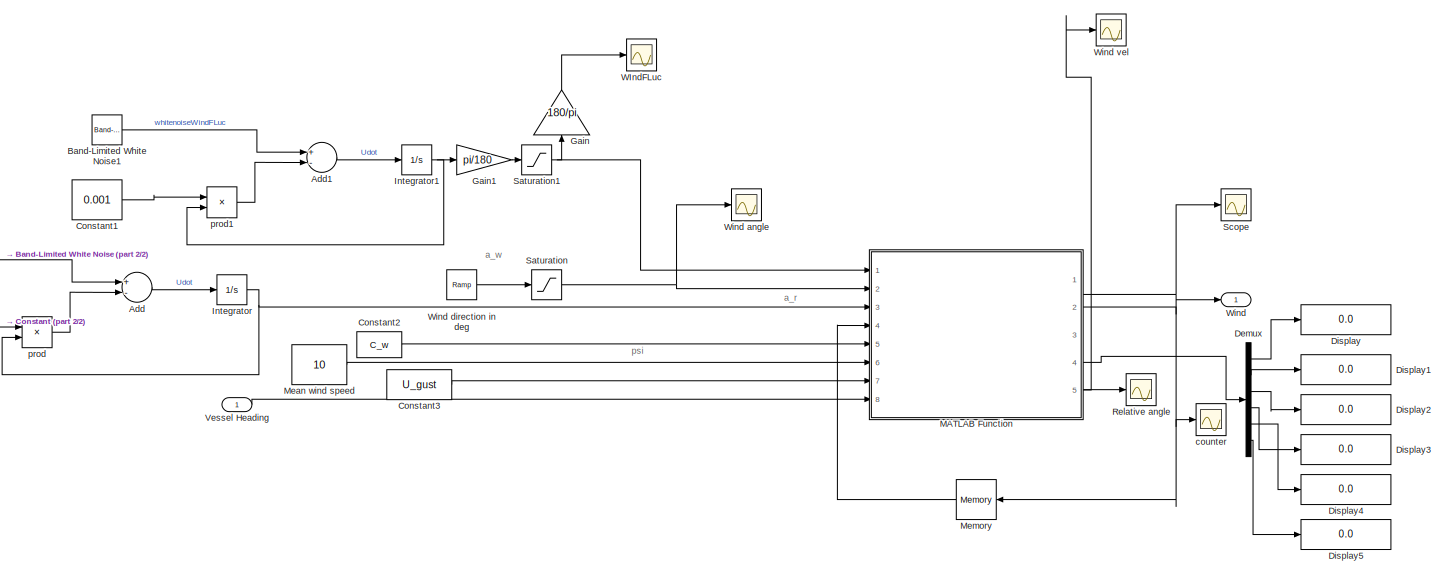
[diagram: Wind1 - part 1/2, most of the canvas]
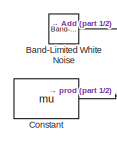
[diagram: Wind1 - part 2/2, middle left region]
BLOCK [SubSystem] Wind1
  Ports = [1, 1]
  RequestExecContextInheritance = off
BLOCK [Sum] Wind1/Add
  InputSameDT = off
  Inputs = +-
  OutDataTypeStr = Inherit: Inherit via internal rule
  Ports = [2, 1]
  SaturateOnIntegerOverflow = off
BLOCK [Sum] Wind1/Add1
  InputSameDT = off
  Inputs = +-
  OutDataTypeStr = Inherit: Inherit via internal rule
  Ports = [2, 1]
  SaturateOnIntegerOverflow = off
BLOCK [Reference] Wind1/Band-Limited White Noise  REF=simulink/Sources/Band-Limited
White Noise
  Ports = [0, 1]
  SourceBlock = simulink/Sources/Band-Limited\nWhite Noise
  SourceProductBaseCode = SL
  SourceProductName = Simulink
  SourceType = Band-Limited White Noise.
BLOCK [Reference] Wind1/Band-Limited White Noise1  REF=simulink/Sources/Band-Limited
White Noise
  Ports = [0, 1]
  SourceBlock = simulink/Sources/Band-Limited\nWhite Noise
  SourceProductBaseCode = SL
  SourceProductName = Simulink
  SourceType = Band-Limited White Noise.
BLOCK [Constant] Wind1/Constant
  Value = mu
BLOCK [Constant] Wind1/Constant1
  Value = 0.001
BLOCK [Constant] Wind1/Constant2
  Value = C_w
BLOCK [Constant] Wind1/Constant3
  Value = U_gust
BLOCK [Demux] Wind1/Demux
  DisplayOption = bar
  Outputs = 6
  Ports = [1, 6]
BLOCK [Display] Wind1/Display
  Decimation = 1
  Format = long
  Ports = [1]
BLOCK [Display] Wind1/Display1
  Decimation = 1
  Format = long
  Ports = [1]
BLOCK [Display] Wind1/Display2
  Decimation = 1
  Format = long
  Ports = [1]
BLOCK [Display] Wind1/Display3
  Decimation = 1
  Format = long
  Ports = [1]
BLOCK [Display] Wind1/Display4
  Decimation = 1
  Format = long
  Ports = [1]
BLOCK [Display] Wind1/Display5
  Decimation = 1
  Format = long
  Ports = [1]
BLOCK [Gain] Wind1/Gain
  Gain = 180/pi
  OutDataTypeStr = Inherit: Inherit via internal rule
  ParamDataTypeStr = Inherit: Inherit via internal rule
  SaturateOnIntegerOverflow = off
BLOCK [Gain] Wind1/Gain1
  Gain = pi/180
  OutDataTypeStr = Inherit: Inherit via internal rule
  ParamDataTypeStr = Inherit: Inherit via internal rule
  SaturateOnIntegerOverflow = off
BLOCK [Integrator] Wind1/Integrator
  Ports = [1, 1]
BLOCK [Integrator] Wind1/Integrator1
  Ports = [1, 1]
BLOCK [SubSystem] Wind1/MATLAB Function
  ErrorFcn = Stateflow.Translate.translate
  PermitHierarchicalResolution = ExplicitOnly
  Ports = [8, 5]
  RequestExecContextInheritance = off
  SFBlockType = MATLAB Function
  TreatAsAtomicUnit = on
BLOCK [Demux] Wind1/MATLAB Function/ Demux 
  Outputs = 1
  Ports = [1, 1]
BLOCK [S-Function] Wind1/MATLAB Function/ SFunction 
  EnableBusSupport = on
  FunctionName = sf_sfun
  PortCounts = [8 6]
  Ports = [8, 6]
  SFcnIsStateOwnerBlock = off
  SFunctionDeploymentMode = off
  Tag = Stateflow S-Function 3
BLOCK [Terminator] Wind1/MATLAB Function/ Terminator 
BLOCK [Outport] Wind1/MATLAB Function/C
  IconDisplay = Port number
  Port = 4
BLOCK [Inport] Wind1/MATLAB Function/C_w
  IconDisplay = Port number
  Port = 5
BLOCK [Inport] Wind1/MATLAB Function/Heading_vessel
  IconDisplay = Port number
  Port = 8
BLOCK [Inport] Wind1/MATLAB Function/U_SV
  IconDisplay = Port number
  Port = 3
BLOCK [Inport] Wind1/MATLAB Function/U_gust
  IconDisplay = Port number
  Port = 7
BLOCK [Inport] Wind1/MATLAB Function/U_mean
  IconDisplay = Port number
  Port = 6
BLOCK [Outport] Wind1/MATLAB Function/U_tot
  IconDisplay = Port number
  Port = 5
BLOCK [Outport] Wind1/MATLAB Function/Wind_force
  IconDisplay = Port number
BLOCK [Inport] Wind1/MATLAB Function/a
  IconDisplay = Port number
  Port = 2
BLOCK [Inport] Wind1/MATLAB Function/a_fluc
  IconDisplay = Port number
BLOCK [Outport] Wind1/MATLAB Function/a_r
  IconDisplay = Port number
  Port = 3
BLOCK [Outport] Wind1/MATLAB Function/counter
  IconDisplay = Port number
  Port = 2
BLOCK [Inport] Wind1/MATLAB Function/counter 
  IconDisplay = Port number
  Port = 4
BLOCK [Constant] Wind1/Mean wind speed
  Value = 10
BLOCK [Memory] Wind1/Memory
  InheritSampleTime = on
  InitialCondition = counter
BLOCK [Scope] Wind1/Relative angle 
  Floating = off
  NumInputPorts = 1
  Ports = [1]
  ScopeSpecificationString = Simulink.scopes.TimeScopeBlockCfg('CurrentConfiguration', extmgr.ConfigurationSet(extmgr.Configuration('Core','General UI',true),extmgr.Configuration('Core','Source UI',true),extmgr.Configuration('Sources','WiredSimulink',true,'DataLoggingVariableName','ScopeData2'),extmgr.Configuration('Visuals','Time Domain',true,'SerializedDisplays',{struct('MinYLimReal','2.58613','MaxYLimReal','3.33629','YLabe...<+1406ch>
BLOCK [Saturate] Wind1/Saturation
  InputPortMap = u0
  LowerLimit = 0
  Ports = [1, 1]
  UpperLimit = 2*pi
BLOCK [Saturate] Wind1/Saturation1
  InputPortMap = u0
  LowerLimit = -5*pi/180
  Ports = [1, 1]
  UpperLimit = 5*pi/180
BLOCK [Scope] Wind1/Scope
  Floating = off
  NumInputPorts = 1
  Ports = [1]
  ScopeSpecificationString = Simulink.scopes.TimeScopeBlockCfg('CurrentConfiguration', extmgr.ConfigurationSet(extmgr.Configuration('Core','General UI',true),extmgr.Configuration('Core','Source UI',true),extmgr.Configuration('Sources','WiredSimulink',true,'DataLoggingVariableName','ScopeData1'),extmgr.Configuration('Visuals','Time Domain',true,'SerializedDisplays',{struct('MinYLimReal','-101043.61179','MaxYLimReal','99866.439...<+1765ch>
BLOCK [Inport] Wind1/Vessel Heading
  IconDisplay = Port number
BLOCK [Scope] Wind1/WIndFLuc 
  Floating = off
  NumInputPorts = 1
  Ports = [1]
  ScopeSpecificationString = Simulink.scopes.TimeScopeBlockCfg('CurrentConfiguration', extmgr.ConfigurationSet(extmgr.Configuration('Core','General UI',true),extmgr.Configuration('Core','Source UI',true),extmgr.Configuration('Sources','WiredSimulink',true,'DataLoggingVariableName','ScopeData2'),extmgr.Configuration('Visuals','Time Domain',true,'SerializedDisplays',{struct('MinYLimReal','-4.21815','MaxYLimReal','2.98991','YLab...<+1393ch>
BLOCK [Outport] Wind1/Wind
  IconDisplay = Port number
  VectorParamsAs1DForOutWhenUnconnected = off
BLOCK [Scope] Wind1/Wind angle
  Floating = off
  NumInputPorts = 1
  Ports = [1]
  ScopeSpecificationString = Simulink.scopes.TimeScopeBlockCfg('CurrentConfiguration', extmgr.ConfigurationSet(extmgr.Configuration('Core','General UI',true),extmgr.Configuration('Core','Source UI',true),extmgr.Configuration('Sources','WiredSimulink',true,'DataLoggingVariableName','ScopeData2'),extmgr.Configuration('Visuals','Time Domain',true,'SerializedDisplays',{struct('MinYLimReal','2.14159','MaxYLimReal','4.14159','YLabe...<+1409ch>
BLOCK [Reference] Wind1/Wind direction in deg  REF=simulink/Sources/Ramp
  Ports = [0, 1]
  SourceBlock = simulink/Sources/Ramp
  SourceProductBaseCode = SL
  SourceProductName = Simulink
  SourceType = Ramp
BLOCK [Scope] Wind1/Wind vel 
  Floating = off
  NumInputPorts = 1
  Ports = [1]
  ScopeSpecificationString = Simulink.scopes.TimeScopeBlockCfg('CurrentConfiguration', extmgr.ConfigurationSet(extmgr.Configuration('Core','General UI',true),extmgr.Configuration('Core','Source UI',true),extmgr.Configuration('Sources','WiredSimulink',true,'DataLoggingVariableName','ScopeData1'),extmgr.Configuration('Visuals','Time Domain',true,'SerializedDisplays',{struct('MinYLimReal','6.08953','MaxYLimReal','14.8807','YLabe...<+1406ch>
BLOCK [Scope] Wind1/counter
  Floating = off
  NumInputPorts = 1
  Ports = [1]
  ScopeSpecificationString = Simulink.scopes.TimeScopeBlockCfg('CurrentConfiguration', extmgr.ConfigurationSet(extmgr.Configuration('Core','General UI',true),extmgr.Configuration('Core','Source UI',true),extmgr.Configuration('Sources','WiredSimulink',true,'DataLoggingVariableName','ScopeData1'),extmgr.Configuration('Visuals','Time Domain',true,'SerializedDisplays',{struct('MinYLimReal','-1248.00000','MaxYLimReal','11252.00000...<+1408ch>
BLOCK [Product] Wind1/prod
  InputSameDT = off
  Inputs = **
  OutDataTypeStr = Inherit: Inherit via internal rule
  Ports = [2, 1]
  RndMeth = Floor
  SaturateOnIntegerOverflow = off
BLOCK [Product] Wind1/prod1
  InputSameDT = off
  Inputs = **
  OutDataTypeStr = Inherit: Inherit via internal rule
  Ports = [2, 1]
  RndMeth = Floor
  SaturateOnIntegerOverflow = off
BLOCK [Scope] eta 
  Floating = off
  NumInputPorts = 1
  Ports = [1]
  ScopeSpecificationString = Simulink.scopes.TimeScopeBlockCfg('CurrentConfiguration', extmgr.ConfigurationSet(extmgr.Configuration('Core','General UI',true),extmgr.Configuration('Core','Source UI',true),extmgr.Configuration('Sources','WiredSimulink',true,'DataLoggingVariableName','ScopeData1'),extmgr.Configuration('Visuals','Time Domain',true,'SerializedDisplays',{struct('MinYLimReal','-0.33341','MaxYLimReal','1.17243','YLab...<+1525ch>
BLOCK [Scope] scope waves 
  Floating = off
  NumInputPorts = 1
  Ports = [1]
  ScopeSpecificationString = Simulink.scopes.TimeScopeBlockCfg('CurrentConfiguration', extmgr.ConfigurationSet(extmgr.Configuration('Core','General UI',true),extmgr.Configuration('Core','Source UI',true),extmgr.Configuration('Sources','WiredSimulink',true,'DataLoggingVariableName','ScopeData2'),extmgr.Configuration('Visuals','Time Domain',true,'SerializedDisplays',{struct('MinYLimReal','-3.39414','MaxYLimReal','6.85316','YLab...<+12107ch>
ANNOTATION (root): Autopilot and reference model
ANNOTATION (root): Environment model for wave disturbance
ANNOTATION (root): Environmental model for current disturbance
ANNOTATION (root): Environmental model for wind disturbance
ANNOTATION (root): Subsystem for observer
ANNOTATION (root): Thrust Allocation and thruster dynamics - This part is "shit the hell, this is not good"
ANNOTATION DP Controller1: Nu_desired
ANNOTATION Observer: Fossen p.296
ANNOTATION Observer/Passive nonlinear observer : Bias estimator: - Wave drift forces - Ocean Currents - Wind
ANNOTATION Observer/Passive nonlinear observer : Wave estimator: - 1st order wave-induced motion
ANNOTATION Observer/Passive nonlinear observer : y =eta_measured
ANNOTATION Wind1: a_r
ANNOTATION Wind1: a_w
ANNOTATION Wind1: psi
LINE Autopilot 1/Autopilot function :1 -> Autopilot 1/Mux:1
LINE Autopilot 1/Autopilot function :2 -> Autopilot 1/Mux:2
LINE Autopilot 1/Autopilot function :3 -> Autopilot 1/Mux:3
NET Autopilot 1/Autopilot function :4 -> Autopilot 1/Memory p:1, Autopilot 1/TIme//setpoint scope:3
NET Autopilot 1/Autopilot function :5 -> Autopilot 1/Memory time:1, Autopilot 1/TIme//setpoint scope:4
LINE Autopilot 1/Autopilot function :6 -> Autopilot 1/Memory start time:1
LINE Autopilot 1/Demux:1 -> Autopilot 1/Autopilot function :2
LINE Autopilot 1/Demux:2 -> Autopilot 1/Autopilot function :3
LINE Autopilot 1/Demux:3 -> Autopilot 1/Autopilot function :4
NET Autopilot 1/Memory p:1 -> Autopilot 1/Autopilot function :6, Autopilot 1/TIme//setpoint scope:1
LINE Autopilot 1/Memory start time:1 -> Autopilot 1/Autopilot function :8
NET Autopilot 1/Memory time:1 -> Autopilot 1/Autopilot function :7, Autopilot 1/TIme//setpoint scope:2
NET Autopilot 1/Mux:1 -> Autopilot 1/Autopilot test :2, Autopilot 1/eta_set:1
LINE Autopilot 1/Simulation Time:1 -> Autopilot 1/Autopilot function :5
NET Autopilot 1/eta:1 -> Autopilot 1/Autopilot test :1, Autopilot 1/Demux:1
LINE Autopilot 1/set points (from init):1 -> Autopilot 1/Autopilot function :1
LINE Autopilot 1:1 -> Reference Model1:1
LINE Constant1:1 -> Manual Switch1:2
LINE Constant2:1 -> Manual Switch3:2
LINE Constant3:1 -> Manual Switch6:1
LINE Constant4:1 -> Manual Switch7:1
LINE Constant:1 -> Manual Switch:2
LINE Current (North - East)1/Add1:1 -> Current (North - East)1/Integrator1:1
LINE Current (North - East)1/Band-Limited White Noise1:1 -> Current (North - East)1/Add1:1
LINE Current (North - East)1/Constant1:1 -> Current (North - East)1/prod1:1
NET Current (North - East)1/Constant:1 -> Current (North - East)1/Mux:3, Current (North - East)1/Mux:4, Current (North - East)1/Mux:5
LINE Current (North - East)1/Demux:1 -> Current (North - East)1/Mux:1
LINE Current (North - East)1/Demux:2 -> Current (North - East)1/Mux:2
LINE Current (North - East)1/Demux:3 -> Current (North - East)1/Mux:6
LINE Current (North - East)1/Heading PSI :1 -> Current (North - East)1/Transposed rotation matrix in yaw:1
LINE Current (North - East)1/Heading of current :1 -> Current (North - East)1/Saturation1:1
NET Current (North - East)1/Integrator1:1 -> Current (North - East)1/Saturation3:1, Current (North - East)1/prod1:2
LINE Current (North - East)1/Magnitude of current :1 -> Current (North - East)1/Saturation2:1
LINE Current (North - East)1/Mux:1 -> Current (North - East)1/Current1:1
NET Current (North - East)1/North-East current1:1 -> Current (North - East)1/Current in NED frame :1, Current (North - East)1/Transposed rotation matrix in yaw:2
LINE Current (North - East)1/Saturation1:1 -> Current (North - East)1/Sum:1
NET Current (North - East)1/Saturation2:1 -> Current (North - East)1/Current and heading:2, Current (North - East)1/North-East current1:2
NET Current (North - East)1/Saturation3:1 -> Current (North - East)1/Slow variation of direction:1, Current (North - East)1/Sum:2
NET Current (North - East)1/Sum:1 -> Current (North - East)1/Current and heading:1, Current (North - East)1/North-East current1:1
NET Current (North - East)1/Transposed rotation matrix in yaw:1 -> Current (North - East)1/Current in Bodyframe :2, Current (North - East)1/Demux:1
LINE Current (North - East)1/prod1:1 -> Current (North - East)1/Add1:2
NET Current (North - East)1:1 -> Manual Switch:1, To Workspace3:1
NET DP Controller1/Constant:1 -> DP Controller1/Mux1:3, DP Controller1/Mux1:4, DP Controller1/Mux1:5
LINE DP Controller1/Demux2:1 -> DP Controller1/Mux1:1
LINE DP Controller1/Demux2:2 -> DP Controller1/Mux1:2
LINE DP Controller1/Demux2:3 -> DP Controller1/Mux1:6
NET DP Controller1/Eta(NED) :1 -> DP Controller1/Selector1:1, DP Controller1/Transposed rotation matrix in yaw1:2
LINE DP Controller1/Eta_desired(NED) :1 -> DP Controller1/Transposed rotation matrix in yaw2:2
LINE DP Controller1/Gain:1 -> DP Controller1/Demux2:1
LINE DP Controller1/Mux1:1 -> DP Controller1/tau (body frame)1:1
LINE DP Controller1/Mux:1 -> DP Controller1/Gain:1
LINE DP Controller1/Nu(BODY) :1 -> DP Controller1/Sum:2
LINE DP Controller1/Nu_desired(NED):1 -> DP Controller1/Transposed rotation matrix in yaw3:2
LINE DP Controller1/PID Controller /Integrator:1 -> DP Controller1/PID Controller /Ki_matrix :1
NET DP Controller1/PID Controller /Kd_matrix :1 -> DP Controller1/PID Controller /Derivative scope :1, DP Controller1/PID Controller /Sum:1
NET DP Controller1/PID Controller /Ki_matrix :1 -> DP Controller1/PID Controller /Integral scope :1, DP Controller1/PID Controller /Sum:3
NET DP Controller1/PID Controller /Kp_matrix:1 -> DP Controller1/PID Controller /Proportional scope :1, DP Controller1/PID Controller /Sum:2
LINE DP Controller1/PID Controller /Nu_dot :1 -> DP Controller1/PID Controller /Kd_matrix :1
LINE DP Controller1/PID Controller /Sum:1 -> DP Controller1/PID Controller /Tau(body):1
NET DP Controller1/PID Controller /eta_error :1 -> DP Controller1/PID Controller /Integrator:1, DP Controller1/PID Controller /Kp_matrix:1
NET DP Controller1/Selector1:1 -> DP Controller1/Transposed rotation matrix in yaw1:1, DP Controller1/Transposed rotation matrix in yaw2:1, DP Controller1/Transposed rotation matrix in yaw3:1
LINE DP Controller1/Sum1:1 -> DP Controller1/Mux:2
LINE DP Controller1/Sum:1 -> DP Controller1/Mux:1
LINE DP Controller1/Transposed rotation matrix in yaw1:1 -> DP Controller1/Sum1:1
LINE DP Controller1/Transposed rotation matrix in yaw2:1 -> DP Controller1/Sum1:2
LINE DP Controller1/Transposed rotation matrix in yaw3:1 -> DP Controller1/Sum:1
NET DP Controller1:1 -> Manual Switch2:1, Thrust Allocation1:1
LINE Manual Switch1:1 -> Sum:1
NET Manual Switch2:1 -> Manual Switch1:1, Selector3:1
LINE Manual Switch3:1 -> Sum:2
LINE Manual Switch4:1 -> DP Controller1:1
NET Manual Switch5:1 -> Autopilot 1:1, DP Controller1:2
LINE Manual Switch6:1 -> Observer:2
LINE Manual Switch7:1 -> Sum1:1
LINE Manual Switch:1 -> Supply Ship:3
LINE Memory1:1 -> Thrust Allocation1:2
LINE Memory:1 -> Manual Switch6:2
LINE Observer/Demux:1 -> Observer/Mux3:1
LINE Observer/Demux:2 -> Observer/Mux3:2
LINE Observer/Demux:3 -> Observer/Mux3:3
LINE Observer/Demux:4 -> Observer/Mux2:1
LINE Observer/Demux:5 -> Observer/Mux2:2
LINE Observer/Demux:6 -> Observer/Mux2:3
LINE Observer/Extended Kalman Filter/Extended Kalman Filter:1 -> Observer/Extended Kalman Filter/Terminator:1
LINE Observer/Extended Kalman Filter/Extended Kalman Filter:2 -> Observer/Extended Kalman Filter/Selector:1
LINE Observer/Extended Kalman Filter/Extended Kalman Filter:3 -> Observer/Extended Kalman Filter/Memory1:1
LINE Observer/Extended Kalman Filter/Extended Kalman Filter:4 -> Observer/Extended Kalman Filter/Memory:1
LINE Observer/Extended Kalman Filter/Memory1:1 -> Observer/Extended Kalman Filter/Extended Kalman Filter:3
LINE Observer/Extended Kalman Filter/Memory:1 -> Observer/Extended Kalman Filter/Extended Kalman Filter:4
LINE Observer/Extended Kalman Filter/Selector:1 -> Observer/Extended Kalman Filter/eta_hat and nu_hat:1
LINE Observer/Extended Kalman Filter/tau_est:1 -> Observer/Extended Kalman Filter/Extended Kalman Filter:2
LINE Observer/Extended Kalman Filter/y:1 -> Observer/Extended Kalman Filter/Extended Kalman Filter:1
LINE Observer/Extended Kalman Filter:1 -> Observer/Manual Switch2:2
LINE Observer/Manual Switch2:1 -> Observer/Demux:1
LINE Observer/Mux2:1 -> Observer/nu_hat:1
LINE Observer/Mux3:1 -> Observer/eta_hat:1
LINE Observer/Mux:1 -> Observer/Manual Switch2:1
LINE Observer/Passive nonlinear observer /Gain1:1 -> Observer/Passive nonlinear observer /Sum2:2
LINE Observer/Passive nonlinear observer /Gain2:1 -> Observer/Passive nonlinear observer /Sum1:1
LINE Observer/Passive nonlinear observer /Gain3:1 -> Observer/Passive nonlinear observer /Transposed rotation matrix in yaw:2
LINE Observer/Passive nonlinear observer /Gain4:1 -> Observer/Passive nonlinear observer /Integrator2:1
LINE Observer/Passive nonlinear observer /Gain5:1 -> Observer/Passive nonlinear observer /Sum4:3
LINE Observer/Passive nonlinear observer /Gain6:1 -> Observer/Passive nonlinear observer /Sum5:1
LINE Observer/Passive nonlinear observer /Gain7:1 -> Observer/Passive nonlinear observer /Sum6:1
LINE Observer/Passive nonlinear observer /Gain8:1 -> Observer/Passive nonlinear observer /Sum6:2
LINE Observer/Passive nonlinear observer /Gain:1 -> Observer/Passive nonlinear observer /Sum2:1
NET Observer/Passive nonlinear observer /Integrator1:1 -> Observer/Passive nonlinear observer /Eta_hat(NED) :1, Observer/Passive nonlinear observer /Sum1:2
NET Observer/Passive nonlinear observer /Integrator2:1 -> Observer/Passive nonlinear observer /Gain5:1, Observer/Passive nonlinear observer /Rotation matrix in yaw 1:2
NET Observer/Passive nonlinear observer /Integrator3:1 -> Observer/Passive nonlinear observer /Gain8:1, Observer/Passive nonlinear observer /Transposed rotation matrix in yaw1:2
NET Observer/Passive nonlinear observer /Integrator:1 -> Observer/Passive nonlinear observer /Gain1:1, Observer/Passive nonlinear observer /Gain2:1
NET Observer/Passive nonlinear observer /Rotation matrix in yaw 1:1 -> Observer/Passive nonlinear observer /Nu_hat(NED) :1, Observer/Passive nonlinear observer /Sum5:2
NET Observer/Passive nonlinear observer /Selector:1 -> Observer/Passive nonlinear observer /Rotation matrix in yaw 1:1, Observer/Passive nonlinear observer /Transposed rotation matrix in yaw1:1, Observer/Passive nonlinear observer /Transposed rotation matrix in yaw:1
LINE Observer/Passive nonlinear observer /Sum1:1 -> Observer/Passive nonlinear observer /Sum:2
LINE Observer/Passive nonlinear observer /Sum2:1 -> Observer/Passive nonlinear observer /Integrator:1
LINE Observer/Passive nonlinear observer /Sum3:1 -> Observer/Passive nonlinear observer /Sum4:2
LINE Observer/Passive nonlinear observer /Sum4:1 -> Observer/Passive nonlinear observer /Gain4:1
LINE Observer/Passive nonlinear observer /Sum5:1 -> Observer/Passive nonlinear observer /Integrator1:1
LINE Observer/Passive nonlinear observer /Sum6:1 -> Observer/Passive nonlinear observer /Integrator3:1
NET Observer/Passive nonlinear observer /Sum:1 -> Observer/Passive nonlinear observer /Gain3:1, Observer/Passive nonlinear observer /Gain6:1, Observer/Passive nonlinear observer /Gain7:1, Observer/Passive nonlinear observer /Gain:1
LINE Observer/Passive nonlinear observer /Transposed rotation matrix in yaw1:1 -> Observer/Passive nonlinear observer /Sum4:1
LINE Observer/Passive nonlinear observer /Transposed rotation matrix in yaw:1 -> Observer/Passive nonlinear observer /Sum3:1
NET Observer/Passive nonlinear observer /eta_measured:1 -> Observer/Passive nonlinear observer /Scope1:1, Observer/Passive nonlinear observer /Selector:1, Observer/Passive nonlinear observer /Sum:1
LINE Observer/Passive nonlinear observer /tau :1 -> Observer/Passive nonlinear observer /Sum3:2
LINE Observer/Passive nonlinear observer :1 -> Observer/Mux:1
LINE Observer/Passive nonlinear observer :2 -> Observer/Mux:2
NET Observer/eta_measured :1 -> Observer/Extended Kalman Filter:1, Observer/Passive nonlinear observer :1
NET Observer/tau:1 -> Observer/Extended Kalman Filter:2, Observer/Passive nonlinear observer :2
LINE Observer:1 -> Manual Switch4:2
LINE Observer:2 -> Manual Switch5:1
LINE Reference Model1/Constant1:1 -> Reference Model1/Mux:2
LINE Reference Model1/Constant2:1 -> Reference Model1/Mux:3
LINE Reference Model1/Constant:1 -> Reference Model1/Mux:1
LINE Reference Model1/Demux:1 -> Reference Model1/Surge switch :1
LINE Reference Model1/Demux:2 -> Reference Model1/Sway switch:1
LINE Reference Model1/Demux:3 -> Reference Model1/Heading switch :1
LINE Reference Model1/Gamma_m :1 -> Reference Model1/Sum1:1
NET Reference Model1/Heading set:1 -> Reference Model1/Mux2:3, Reference Model1/Reference model set :3
NET Reference Model1/Heading switch :1 -> Reference Model1/Heading set:1, Reference Model1/Reference model set :2
LINE Reference Model1/Heading_set1:1 -> Reference Model1/Sum2:1
LINE Reference Model1/Heading_set2:1 -> Reference Model1/Sum2:2
NET Reference Model1/Integrator1:1 -> Reference Model1/Manual Switch:2, Reference Model1/Reference model set :1, Reference Model1/Sum:2
NET Reference Model1/Integrator:1 -> Reference Model1/Integrator1:1, Reference Model1/Omega_m:1, Reference Model1/eta_dot_desired = nu_desired(NED):1
LINE Reference Model1/Manual Switch:1 -> Reference Model1/Eta_desired(NED):1
LINE Reference Model1/Mux2:1 -> Reference Model1/Sum:1
LINE Reference Model1/Mux:1 -> Reference Model1/Manual Switch:1
LINE Reference Model1/Omega_m:1 -> Reference Model1/Sum1:2
LINE Reference Model1/Sum1:1 -> Reference Model1/Integrator:1
LINE Reference Model1/Sum2:1 -> Reference Model1/Heading switch :2
LINE Reference Model1/Sum:1 -> Reference Model1/Gamma_m :1
LINE Reference Model1/Surge set:1 -> Reference Model1/Mux2:1
LINE Reference Model1/Surge switch :1 -> Reference Model1/Surge set:1
LINE Reference Model1/Sway set:1 -> Reference Model1/Mux2:2
LINE Reference Model1/Sway switch:1 -> Reference Model1/Sway set:1
LINE Reference Model1/eta_set :1 -> Reference Model1/Demux:1
LINE Reference Model1/surge_set1 :1 -> Reference Model1/Surge switch :2
LINE Reference Model1/sway_set1:1 -> Reference Model1/Sway switch:2
NET Reference Model1:1 -> DP Controller1:3, To Workspace2:1
NET Reference Model1:2 -> DP Controller1:4, To Workspace1:1
LINE Selector1:1 -> Manual Switch4:1
NET Selector2:1 -> Current (North - East)1:1, Wind1:1
LINE Selector3:1 -> Memory:1
NET Selector:1 -> Selector2:1, Sum1:2, To Workspace:1
LINE Subsystem/Band-Limited White Noise:1 -> Subsystem/Gain:1
LINE Subsystem/Gain:1 -> Subsystem/Measurement noise:1
LINE Subsystem:1 -> Manual Switch7:2
NET Sum1:1 -> Manual Switch5:2, Observer:1, eta :1
LINE Sum:1 -> Supply Ship:2
NET Supply Ship:1 -> Selector:1, Wave1:1
LINE Supply Ship:2 -> Selector1:1
LINE Thrust Allocation1/AlphaReal:1 -> Thrust Allocation1/MATLAB Function:4
LINE Thrust Allocation1/Constant1:1 -> Thrust Allocation1/MATLAB Function:2
LINE Thrust Allocation1/Constant:1 -> Thrust Allocation1/MATLAB Function:3
LINE Thrust Allocation1/Gain:1 -> Thrust Allocation1/Scope:1
NET Thrust Allocation1/MATLAB Function:1 -> Thrust Allocation1/Scope1:1, Thrust Allocation1/u:1
NET Thrust Allocation1/MATLAB Function:2 -> Thrust Allocation1/Gain:1, Thrust Allocation1/alpha [rad]:1
LINE Thrust Allocation1/Selector:1 -> Thrust Allocation1/MATLAB Function:1
LINE Thrust Allocation1/tau_d:1 -> Thrust Allocation1/Selector:1
NET Thrust Allocation1:1 -> Thruster Dynamics:1, Thruster:1
NET Thrust Allocation1:2 -> Thruster Dynamics:2, Thruster:2
LINE Thruster Dynamics/Constant1:1 -> Thruster Dynamics/Mux1:2
LINE Thruster Dynamics/Constant2:1 -> Thruster Dynamics/MATLAB Function:4
LINE Thruster Dynamics/Constant:1 -> Thruster Dynamics/MATLAB Function:3
LINE Thruster Dynamics/Demux1:1 -> Thruster Dynamics/alpha:1
LINE Thruster Dynamics/Demux1:2 -> Thruster Dynamics/alpha:2
LINE Thruster Dynamics/Demux1:3 -> Thruster Dynamics/Rate Limiter8:1
LINE Thruster Dynamics/Demux1:4 -> Thruster Dynamics/Rate Limiter10:1
LINE Thruster Dynamics/Demux1:5 -> Thruster Dynamics/Rate Limiter11:1
LINE Thruster Dynamics/Demux:1 -> Thruster Dynamics/Saturation:1
LINE Thruster Dynamics/Demux:2 -> Thruster Dynamics/Saturation1:1
LINE Thruster Dynamics/Demux:3 -> Thruster Dynamics/Saturation2:1
LINE Thruster Dynamics/Demux:4 -> Thruster Dynamics/Saturation4:1
LINE Thruster Dynamics/Demux:5 -> Thruster Dynamics/Saturation5:1
LINE Thruster Dynamics/Gain1:1 -> Thruster Dynamics/u:2
LINE Thruster Dynamics/Gain2:1 -> Thruster Dynamics/u:4
LINE Thruster Dynamics/MATLAB Function:1 -> Thruster Dynamics/Mux1:1
LINE Thruster Dynamics/Mux1:1 -> Thruster Dynamics/Selector4:1
LINE Thruster Dynamics/Rate Limiter10:1 -> Thruster Dynamics/alpha:4
LINE Thruster Dynamics/Rate Limiter11:1 -> Thruster Dynamics/alpha:5
LINE Thruster Dynamics/Rate Limiter1:1 -> Thruster Dynamics/Gain1:1
LINE Thruster Dynamics/Rate Limiter2:1 -> Thruster Dynamics/u:3
LINE Thruster Dynamics/Rate Limiter4:1 -> Thruster Dynamics/Gain2:1
LINE Thruster Dynamics/Rate Limiter5:1 -> Thruster Dynamics/u:5
LINE Thruster Dynamics/Rate Limiter8:1 -> Thruster Dynamics/alpha:3
LINE Thruster Dynamics/Rate Limiter:1 -> Thruster Dynamics/u:1
LINE Thruster Dynamics/Saturation1:1 -> Thruster Dynamics/Rate Limiter1:1
LINE Thruster Dynamics/Saturation2:1 -> Thruster Dynamics/Rate Limiter2:1
LINE Thruster Dynamics/Saturation4:1 -> Thruster Dynamics/Rate Limiter4:1
LINE Thruster Dynamics/Saturation5:1 -> Thruster Dynamics/Rate Limiter5:1
LINE Thruster Dynamics/Saturation:1 -> Thruster Dynamics/Rate Limiter:1
LINE Thruster Dynamics/Selector4:1 -> Thruster Dynamics/Forces (body frame) :1
LINE Thruster Dynamics/alpha [rad]:1 -> Thruster Dynamics/Demux1:1
NET Thruster Dynamics/alpha:1 -> Thruster Dynamics/MATLAB Function:1, Thruster Dynamics/alpha_REAL:1
LINE Thruster Dynamics/u [N]:1 -> Thruster Dynamics/Demux:1
LINE Thruster Dynamics/u:1 -> Thruster Dynamics/MATLAB Function:2
NET Thruster Dynamics:1 -> Manual Switch2:2, Thruster:3
NET Thruster Dynamics:2 -> Alpha:1, Memory1:1
LINE Wave1/Gain:1 -> Wave1/Wave:1
LINE Wave1/Sum:1 -> Wave1/Gain:1
LINE Wave1/Wave loads (U=0):1 -> Wave1/Sum:1
LINE Wave1/Wave loads (U=0):2 -> Wave1/Sum:2
LINE Wave1/eta:1 -> Wave1/Wave loads (U=0):1
LINE Wave1/waves:1 -> Wave1/Wave loads (U=0):2
NET Wave1:1 -> Scope:1, Supply Ship:1, To Workspace4:1
NET Waves1:1 -> Wave1:2, scope waves :1
LINE Waves1:2 -> Terminator:1
LINE Wind1/Add1:1 -> Wind1/Integrator1:1
LINE Wind1/Add:1 -> Wind1/Integrator:1
LINE Wind1/Band-Limited White Noise1:1 -> Wind1/Add1:1
LINE Wind1/Band-Limited White Noise:1 -> Wind1/Add:1
LINE Wind1/Constant1:1 -> Wind1/prod1:1
LINE Wind1/Constant2:1 -> Wind1/MATLAB Function:5
LINE Wind1/Constant3:1 -> Wind1/MATLAB Function:7
LINE Wind1/Constant:1 -> Wind1/prod:1
LINE Wind1/Demux:1 -> Wind1/Display:1
LINE Wind1/Demux:2 -> Wind1/Display1:1
LINE Wind1/Demux:3 -> Wind1/Display2:1
LINE Wind1/Demux:4 -> Wind1/Display3:1
LINE Wind1/Demux:5 -> Wind1/Display4:1
LINE Wind1/Demux:6 -> Wind1/Display5:1
LINE Wind1/Gain1:1 -> Wind1/Saturation1:1
LINE Wind1/Gain:1 -> Wind1/WIndFLuc :1
NET Wind1/Integrator1:1 -> Wind1/Gain1:1, Wind1/prod1:2
NET Wind1/Integrator:1 -> Wind1/MATLAB Function:3, Wind1/prod:2
NET Wind1/MATLAB Function:1 -> Wind1/Scope:1, Wind1/Wind:1
NET Wind1/MATLAB Function:2 -> Wind1/Memory:1, Wind1/counter:1
LINE Wind1/MATLAB Function:3 -> Wind1/Relative angle :1
LINE Wind1/MATLAB Function:4 -> Wind1/Demux:1
LINE Wind1/MATLAB Function:5 -> Wind1/Wind vel :1
LINE Wind1/Mean wind speed:1 -> Wind1/MATLAB Function:6
LINE Wind1/Memory:1 -> Wind1/MATLAB Function:4
NET Wind1/Saturation1:1 -> Wind1/Gain:1, Wind1/MATLAB Function:1
NET Wind1/Saturation:1 -> Wind1/MATLAB Function:2, Wind1/Wind angle:1
LINE Wind1/Vessel Heading:1 -> Wind1/MATLAB Function:8
LINE Wind1/Wind direction in deg:1 -> Wind1/Saturation:1
LINE Wind1/prod1:1 -> Wind1/Add1:2
LINE Wind1/prod:1 -> Wind1/Add:2
NET Wind1:1 -> Manual Switch3:1, To Workspace5:1
note: NET lines group one-source signal fan-out (src -> all destinations, sorted); 1:1 wires keep LINE
CHART Thrust Allocation1/MATLAB Function states=1 transitions=1
  STATE_LABEL 'eML_blk_kernel()'
  STATE_LABEL 'SCRIPT:\nfunction [u_thrust, alpha] = thrust_allocation_extended(tau, thrust_loc, K_t, alpha_prev_real)\n%Calculates the control vector for each thruster\n\nT_extended = [0 0 1 0 1 0 1 0; ...\n    1 1 0 1 0 1 0 1; \n    thrust_loc(1) thrust_loc(2) 0 thrust_loc(3) thrust_loc(5) ...\n    thrust_loc(4) thrust_loc(6) thrust_loc(4)]; \n\nu_e = inv(K_t)*pinv(T_extended)*tau;\n\nu_d_3 = sqrt(u_e(3)^2 + u_e(4)^2); %...<+1237ch>'
CHART Wind1/MATLAB Function states=1 transitions=1
  STATE_LABEL 'eML_blk_kernel()'
  STATE_LABEL "SCRIPT:\nfunction [Wind_force,counter, a_r,C,U_tot]  = fcn(a_fluc, a,U_SV,counter, C_w, U_mean, U_gust,Heading_vessel)\ncounter = counter + 1;\na_r = 0; %relative angle\nWind_force = [0 0 0 0 0 0]';\n\nC_x = 0;\nC_y = 0;\nC_z = 0;\nC_theta = 0;\nC_phi= 0;\nC_psi = 0;\nC = zeros(6,1);\n\n%Se om vinkelen er mellom 0 og 2pi\na_r = a+a_fluc-Heading_vessel;\n%For testing purpose:\n%a_r = u;\n\n%Så hente ut tilhørende ver...<+417ch>"
CHART Thruster Dynamics/MATLAB Function states=1 transitions=1
  STATE_LABEL 'eML_blk_kernel()'
  STATE_LABEL 'SCRIPT:\nfunction actual_tau   = fcn(alpha_actual,thrust_actual,PosX,PosY)\n\n    Alpha_surge =[cos(alpha_actual(1)) cos(alpha_actual(2)) cos(alpha_actual(3)) cos(alpha_actual(4)) cos(alpha_actual(5))];  \n    Alpha_sway = [sin(alpha_actual(1)) sin(alpha_actual(2)) sin(alpha_actual(3)) sin(alpha_actual(4)) sin(alpha_actual(5))];\n    Alpha_yaw = [sin(alpha_actual(1))*PosX(1)-cos(alpha_actual(1))*PosY(1...<+351ch>'
CHART Autopilot
1/Autopilot function
 states=1 transitions=1
  STATE_LABEL 'eML_blk_kernel()'
  STATE_LABEL 'SCRIPT:\nfunction [surge_0, sway_0, heading_0, p, time, start_time] = autopilot(set_points, surge, sway, heading, clock, p, time, start_time)\n%Inputs current surge, sway, heading and outputs ref values surge_0,\n%sway_0, heading_0\n\ntime_crit = 30;  %Time criteria at set point before moving\naccu = 5;       %Accuracy/Tollerance\naccu_h = 5 * pi/180;   %Heading accuracy\n\n\n\ndim = size(set_points);\n\nif p ...<+1328ch>'
CHART Observer/Extended Kalman Filter/Extended Kalman Filter states=1 transitions=1
  STATE_LABEL 'eML_blk_kernel()'
  STATE_LABEL 'SCRIPT:\nfunction [P_hat, x_hat, P_bar, x_bar] = ExtendedKalmanFilter(y, tau,EKFData,...\n    P_bar, x_bar)\n\npersistent Aw B_kf H_kf E_kf M_inv D...\n     R_kf Q_kf... \n    h_step Tb Phi \n\n   [Aw,B_kf,H_kf,E_kf,R_kf,Q_kf, M_inv, D, ~, ~, h_step, Tb] = ...\n        deal(EKFData.Aw, EKFData.B_kf, EKFData.H_kf, EKFData.E_kf,...\n        EKFData.R_kf,EKFData.Q_kf,EKFData.M_inv,EKFData.D,EKFData.Zetan,...\n ...<+2812ch>'
